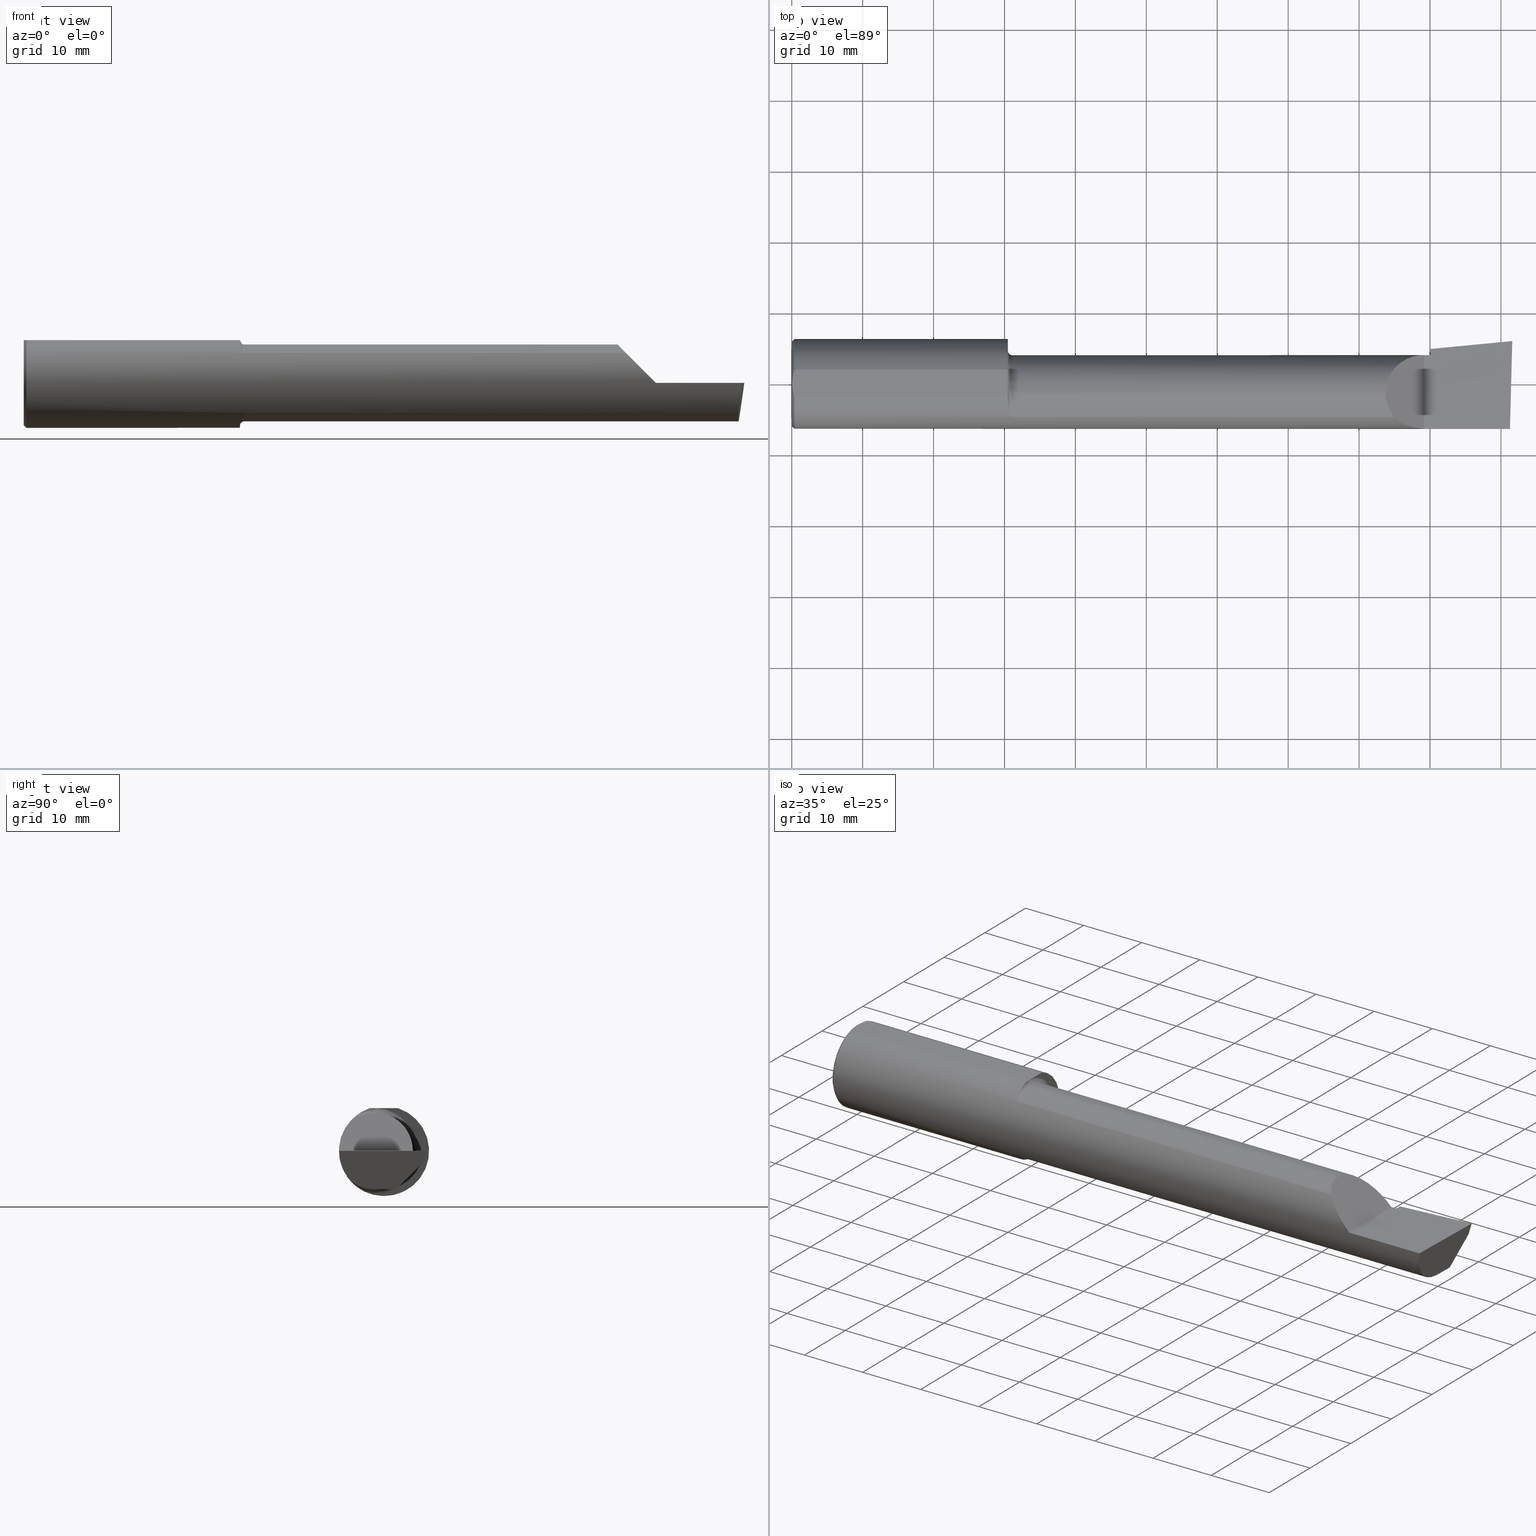
[diagram: canonical four-view strip — front | top / right | iso, engineering-drawing reading convention]
A machine part, canonical four-view strip (front | top / right | iso — engineering-drawing reading convention). The complete STEP part file that produces these views, byte-faithful:
ISO-10303-21;
HEADER;
FILE_DESCRIPTION (( 'STEP AP214' ),
    '1' );
FILE_NAME ('B4902750.STEP',
    '2020-05-06T20:05:03',
    ( '' ),
    ( '' ),
    'SwSTEP 2.0',
    'SolidWorks 2018',
    '' );
FILE_SCHEMA (( 'AUTOMOTIVE_DESIGN' ));
ENDSEC;

DATA;
#1 = ORIENTED_EDGE ( 'NONE', *, *, #139, .F. ) ;
#2 = VECTOR ( 'NONE', #736, 39.37007874015748143 ) ;
#3 = CARTESIAN_POINT ( 'NONE',  ( 1.200000000000000400, -0.04105010460297373043, 0.2378500000000000059 ) ) ;
#4 = ORIENTED_EDGE ( 'NONE', *, *, #674, .T. ) ;
#5 = ORIENTED_EDGE ( 'NONE', *, *, #404, .T. ) ;
#6 = DIRECTION ( 'NONE',  ( 0.06894566448119619773, -0.7160281025913034503, 0.6946583704589934793 ) ) ;
#7 = FACE_OUTER_BOUND ( 'NONE', #180, .T. ) ;
#8 = CARTESIAN_POINT ( 'NONE',  ( 1.200001800035618293, -0.04901601311796578014, 0.2378500024320483464 ) ) ;
#9 = VERTEX_POINT ( 'NONE', #194 ) ;
#10 = CARTESIAN_POINT ( 'NONE',  ( 3.344079160038590626, -0.1868028301886808795, 0.1659208399614073015 ) ) ;
#11 = EDGE_CURVE ( 'NONE', #76, #616, #684, .T. ) ;
#12 = LINE ( 'NONE', #202, #466 ) ;
#13 = DIRECTION ( 'NONE',  ( -1.000000000000000000, 0.0000000000000000000, 1.512967610748942321E-16 ) ) ;
#14 = EDGE_CURVE ( 'NONE', #761, #616, #144, .T. ) ;
#15 = DIRECTION ( 'NONE',  ( 0.0000000000000000000, 0.0000000000000000000, 1.000000000000000000 ) ) ;
#16 = CIRCLE ( 'NONE', #109, 0.2381499999999997230 ) ;
#17 = VERTEX_POINT ( 'NONE', #128 ) ;
#18 = CARTESIAN_POINT ( 'NONE',  ( 7.089685198749692867E-32, -0.2498499999999999610, 4.685946446163635703E-16 ) ) ;
#19 = ORIENTED_EDGE ( 'NONE', *, *, #476, .F. ) ;
#20 = CARTESIAN_POINT ( 'NONE',  ( 0.0000000000000000000, -0.05299999999999998462, 0.2131499999999999506 ) ) ;
#21 = ORIENTED_EDGE ( 'NONE', *, *, #640, .T. ) ;
#22 = PLANE ( 'NONE',  #676 ) ;
#23 =( BOUNDED_CURVE ( )  B_SPLINE_CURVE ( 3, ( #468, #407, #179, #125 ),
 .UNSPECIFIED., .F., .F. ) 
 B_SPLINE_CURVE_WITH_KNOTS ( ( 4, 4 ),
 ( 2.868174658477177008, 2.883234730632700415 ),
 .UNSPECIFIED. ) 
 CURVE ( )  GEOMETRIC_REPRESENTATION_ITEM ( )  RATIONAL_B_SPLINE_CURVE ( ( 1.000000000000000000, 0.9999810996081960335, 0.9999810996081960335, 1.000000000000000000 ) ) 
 REPRESENTATION_ITEM ( '' )  );
#24 = FACE_OUTER_BOUND ( 'NONE', #658, .T. ) ;
#25 = CARTESIAN_POINT ( 'NONE',  ( 1.200332084145229627, -0.1014027185340456438, 0.2286231260779308383 ) ) ;
#26 = ORIENTED_EDGE ( 'NONE', *, *, #267, .T. ) ;
#27 = ORIENTED_EDGE ( 'NONE', *, *, #61, .F. ) ;
#28 = EDGE_CURVE ( 'NONE', #99, #131, #478, .T. ) ;
#29 = CARTESIAN_POINT ( 'NONE',  ( 1.225000000000000311, -0.1868028301886803799, 0.1659208399614076346 ) ) ;
#30 = VECTOR ( 'NONE', #628, 39.37007874015748854 ) ;
#31 = DIRECTION ( 'NONE',  ( 0.0000000000000000000, 0.0000000000000000000, -1.000000000000000000 ) ) ;
#32 = ORIENTED_EDGE ( 'NONE', *, *, #735, .F. ) ;
#33 = ADVANCED_FACE ( 'NONE', ( #592 ), #52, .T. ) ;
#34 = CARTESIAN_POINT ( 'NONE',  ( 1.225000000000000311, -0.1868028301886803799, 0.1659208399614076346 ) ) ;
#35 = CARTESIAN_POINT ( 'NONE',  ( 3.527186805775590628, 0.1926232675529001570, -6.829619984160658046E-17 ) ) ;
#36 = ADVANCED_FACE ( 'NONE', ( #521 ), #353, .F. ) ;
#37 = SURFACE_SIDE_STYLE ('',( #697 ) ) ;
#38 = DIRECTION ( 'NONE',  ( 0.09165774897393338949, -0.9519021185660614393, 0.2923717047227301080 ) ) ;
#39 = VECTOR ( 'NONE', #379, 39.37007874015748143 ) ;
#40 = ORIENTED_EDGE ( 'NONE', *, *, #355, .T. ) ;
#41 = VERTEX_POINT ( 'NONE', #181 ) ;
#42 = DIRECTION ( 'NONE',  ( -1.000000000000000000, -0.0000000000000000000, -0.0000000000000000000 ) ) ;
#43 = DIRECTION ( 'NONE',  ( 0.0000000000000000000, -1.138839417068643993E-16, -1.000000000000000000 ) ) ;
#44 = CIRCLE ( 'NONE', #325, 0.2131499999999997563 ) ;
#45 = AXIS2_PLACEMENT_3D ( 'NONE', #170, #175, #117 ) ;
#46 = ORIENTED_EDGE ( 'NONE', *, *, #374, .F. ) ;
#47 = CARTESIAN_POINT ( 'NONE',  ( 3.390325100969866945, -0.2278791102234780930, 0.1196748990301311488 ) ) ;
#48 = ORIENTED_EDGE ( 'NONE', *, *, #640, .F. ) ;
#49 = CARTESIAN_POINT ( 'NONE',  ( 3.966195468375009359, -0.05299999999999998462, -0.2131499999999999229 ) ) ;
#50 = ORIENTED_EDGE ( 'NONE', *, *, #700, .F. ) ;
#51 = DIRECTION ( 'NONE',  ( -0.7071067811865511255, 0.0000000000000000000, 0.7071067811865439090 ) ) ;
#52 = CYLINDRICAL_SURFACE ( 'NONE', #45, 0.2498499999999999888 ) ;
#53 = VERTEX_POINT ( 'NONE', #524 ) ;
#54 = B_SPLINE_CURVE_WITH_KNOTS ( 'NONE', 3,
 ( #388, #334, #611, #668, #204, #89 ),
 .UNSPECIFIED., .F., .F.,
 ( 4, 2, 4 ),
 ( 0.002692677063605041030, 0.003672889278957893171, 0.004653101494310745746 ),
 .UNSPECIFIED. ) ;
#55 = DIRECTION ( 'NONE',  ( 0.06658005426110603919, -0.6914603011188221737, -0.7193398003386548556 ) ) ;
#56 = EDGE_CURVE ( 'NONE', #454, #534, #209, .T. ) ;
#57 = CARTESIAN_POINT ( 'NONE',  ( 1.200000900032402340, -0.05299999999999998462, 0.2378500000000221548 ) ) ;
#58 = ORIENTED_EDGE ( 'NONE', *, *, #311, .T. ) ;
#59 = VERTEX_POINT ( 'NONE', #574 ) ;
#60 = CARTESIAN_POINT ( 'NONE',  ( 3.448145753305724259, -0.2498500000000001275, 0.06185424669427388999 ) ) ;
#61 = EDGE_CURVE ( 'NONE', #63, #146, #366, .T. ) ;
#62 = ORIENTED_EDGE ( 'NONE', *, *, #743, .F. ) ;
#63 = VERTEX_POINT ( 'NONE', #519 ) ;
#64 = DIRECTION ( 'NONE',  ( 0.0000000000000000000, -1.000000000000000000, 1.138839417068643993E-16 ) ) ;
#65 = LINE ( 'NONE', #18, #654 ) ;
#66 = ORIENTED_EDGE ( 'NONE', *, *, #114, .T. ) ;
#67 = VECTOR ( 'NONE', #167, 39.37007874015748143 ) ;
#68 = CARTESIAN_POINT ( 'NONE',  ( 0.0000000000000000000, -0.05299999999999998462, 0.0000000000000000000 ) ) ;
#69 = CARTESIAN_POINT ( 'NONE',  ( 2.385000000000000231, -0.1868028301886794917, 0.1659208399614086338 ) ) ;
#70 = EDGE_CURVE ( 'NONE', #9, #239, #190, .T. ) ;
#71 =( GEOMETRIC_REPRESENTATION_CONTEXT ( 3 ) GLOBAL_UNCERTAINTY_ASSIGNED_CONTEXT ( ( #198 ) ) GLOBAL_UNIT_ASSIGNED_CONTEXT ( ( #565, #219, #627 ) ) REPRESENTATION_CONTEXT ( 'NONE', 'WORKASPACE' ) );
#72 = DIRECTION ( 'NONE',  ( -1.000000000000000000, 5.691349986800549142E-18, -0.0000000000000000000 ) ) ;
#73 = CARTESIAN_POINT ( 'NONE',  ( 3.544999999999999929, -0.05299999999999998462, 0.0000000000000000000 ) ) ;
#74 = CARTESIAN_POINT ( 'NONE',  ( 0.01499999999999999771, 0.0000000000000000000, 0.0000000000000000000 ) ) ;
#75 = AXIS2_PLACEMENT_3D ( 'NONE', #107, #515, #158 ) ;
#76 = VERTEX_POINT ( 'NONE', #395 ) ;
#77 = PRODUCT_DEFINITION_CONTEXT ( 'detailed design', #341, 'design' ) ;
#78 = CARTESIAN_POINT ( 'NONE',  ( 3.544999999999999929, 0.05698775240724700958, -0.1825804393148460492 ) ) ;
#79 = ORIENTED_EDGE ( 'NONE', *, *, #70, .T. ) ;
#80 = CARTESIAN_POINT ( 'NONE',  ( 3.544999999999999929, 0.02733053485622427906, -0.2131499999999999506 ) ) ;
#81 = CARTESIAN_POINT ( 'NONE',  ( 3.987221270274238005, -0.2498499999999999888, -1.346590301211607078E-16 ) ) ;
#82 = FACE_OUTER_BOUND ( 'NONE', #587, .T. ) ;
#83 = CARTESIAN_POINT ( 'NONE',  ( 1.200001800093990489, -0.05698398688203856061, 0.2378499975680403167 ) ) ;
#84 =( BOUNDED_CURVE ( )  B_SPLINE_CURVE ( 3, ( #140, #490, #200, #603 ),
 .UNSPECIFIED., .F., .F. ) 
 B_SPLINE_CURVE_WITH_KNOTS ( ( 4, 4 ),
 ( 0.0000000000000000000, 1.570796326794898112 ),
 .UNSPECIFIED. ) 
 CURVE ( )  GEOMETRIC_REPRESENTATION_ITEM ( )  RATIONAL_B_SPLINE_CURVE ( ( 1.000000000000000000, 0.8047378541243646044, 0.8047378541243646044, 1.000000000000000000 ) ) 
 REPRESENTATION_ITEM ( '' )  );
#85 = CARTESIAN_POINT ( 'NONE',  ( 3.537149611766882806, 0.08915557130098392125, -0.1634615431086029191 ) ) ;
#86 = AXIS2_PLACEMENT_3D ( 'NONE', #229, #113, #51 ) ;
#87 = DIRECTION ( 'NONE',  ( 0.0000000000000000000, 0.0000000000000000000, -1.000000000000000000 ) ) ;
#88 = AXIS2_PLACEMENT_3D ( 'NONE', #74, #485, #135 ) ;
#89 = CARTESIAN_POINT ( 'NONE',  ( 0.003000000000000035624, 4.000210840755228160E-17, 0.2378500000000000059 ) ) ;
#90 = CARTESIAN_POINT ( 'NONE',  ( 1.202700302592143222, -0.1312404656039936057, 0.2128935242986059462 ) ) ;
#91 = DIRECTION ( 'NONE',  ( -1.000000000000000000, -0.0000000000000000000, -0.0000000000000000000 ) ) ;
#92 = COLOUR_RGB ( '',0.7529411764705882248, 0.7529411764705882248, 0.7529411764705882248 ) ;
#93 = CARTESIAN_POINT ( 'NONE',  ( 1.200000000000000400, 0.0000000000000000000, 0.0000000000000000000 ) ) ;
#94 = ADVANCED_FACE ( 'NONE', ( #352 ), #220, .T. ) ;
#95 = EDGE_LOOP ( 'NONE', ( #718, #546, #406, #563, #249 ) ) ;
#96 = DIRECTION ( 'NONE',  ( 0.0000000000000000000, 0.6963153109074925462, 0.7177360153954948085 ) ) ;
#97 = PLANE ( 'NONE',  #121 ) ;
#98 = AXIS2_PLACEMENT_3D ( 'NONE', #678, #630, #283 ) ;
#99 = VERTEX_POINT ( 'NONE', #569 ) ;
#100 = ADVANCED_FACE ( 'NONE', ( #331 ), #619, .T. ) ;
#101 = CARTESIAN_POINT ( 'NONE',  ( 3.988156289907357266, 0.07000163221415005299, -0.2131499999999999506 ) ) ;
#102 = COLOUR_RGB ( '',0.7529411764705882248, 0.7529411764705882248, 0.7529411764705882248 ) ;
#103 = DIRECTION ( 'NONE',  ( -0.0000000000000000000, 0.0000000000000000000, 1.000000000000000000 ) ) ;
#104 = ORIENTED_EDGE ( 'NONE', *, *, #540, .T. ) ;
#105 = ORIENTED_EDGE ( 'NONE', *, *, #700, .T. ) ;
#106 =( LENGTH_UNIT ( ) NAMED_UNIT ( * ) SI_UNIT ( $, .METRE. ) );
#107 = CARTESIAN_POINT ( 'NONE',  ( 3.544999999999999929, -0.05299999999999998462, 0.0000000000000000000 ) ) ;
#108 = EDGE_CURVE ( 'NONE', #131, #665, #169, .T. ) ;
#109 = AXIS2_PLACEMENT_3D ( 'NONE', #240, #358, #646 ) ;
#110 = PLANE ( 'NONE',  #344 ) ;
#111 = DIRECTION ( 'NONE',  ( 1.000000000000000000, 0.0000000000000000000, 0.0000000000000000000 ) ) ;
#112 = SURFACE_STYLE_USAGE ( .BOTH. , #163 ) ;
#113 = DIRECTION ( 'NONE',  ( -0.7071067811865439090, 0.0000000000000000000, -0.7071067811865511255 ) ) ;
#114 = EDGE_CURVE ( 'NONE', #644, #649, #482, .T. ) ;
#115 = AXIS2_PLACEMENT_3D ( 'NONE', #504, #560, #214 ) ;
#116 = VERTEX_POINT ( 'NONE', #562 ) ;
#117 = DIRECTION ( 'NONE',  ( 0.0000000000000000000, 0.0000000000000000000, 1.000000000000000000 ) ) ;
#118 = CARTESIAN_POINT ( 'NONE',  ( 0.003000000000000035624, 4.000210840755228160E-17, 0.2378500000000000059 ) ) ;
#119 = CARTESIAN_POINT ( 'NONE',  ( 3.544999999999999929, -0.05299999999999998462, -0.2131499999999999229 ) ) ;
#120 = ORIENTED_EDGE ( 'NONE', *, *, #527, .T. ) ;
#121 = AXIS2_PLACEMENT_3D ( 'NONE', #502, #382, #728 ) ;
#122 = CONICAL_SURFACE ( 'NONE', #195, 0.2498499999999999888, 0.7853981633974601584 ) ;
#123 = ORIENTED_EDGE ( 'NONE', *, *, #735, .T. ) ;
#124 = CYLINDRICAL_SURFACE ( 'NONE', #691, 0.2131499999999999506 ) ;
#125 = CARTESIAN_POINT ( 'NONE',  ( 3.544999999999999929, 0.1328281892403430642, -0.1044069278527782890 ) ) ;
#126 = DIRECTION ( 'NONE',  ( -1.000000000000000000, -0.0000000000000000000, -0.0000000000000000000 ) ) ;
#127 = ORIENTED_EDGE ( 'NONE', *, *, #503, .T. ) ;
#128 = CARTESIAN_POINT ( 'NONE',  ( 1.200000000000000400, -0.04105010460297373043, 0.2378500000000000059 ) ) ;
#129 = ORIENTED_EDGE ( 'NONE', *, *, #148, .T. ) ;
#130 = CARTESIAN_POINT ( 'NONE',  ( 3.544999999999999929, 0.1328281892403430642, -0.1044069278527782890 ) ) ;
#131 = VERTEX_POINT ( 'NONE', #217 ) ;
#132 = VECTOR ( 'NONE', #55, 39.37007874015748854 ) ;
#133 = PRODUCT_DEFINITION ( 'UNKNOWN', '', #174, #77 ) ;
#134 = ORIENTED_EDGE ( 'NONE', *, *, #404, .F. ) ;
#135 = DIRECTION ( 'NONE',  ( 0.0000000000000000000, 0.0000000000000000000, 1.000000000000000000 ) ) ;
#136 = CARTESIAN_POINT ( 'NONE',  ( 7.089685198749692867E-32, 0.1601499999999999313, 4.685946446163635703E-16 ) ) ;
#137 = DIRECTION ( 'NONE',  ( -1.000000000000000000, -0.0000000000000000000, -0.0000000000000000000 ) ) ;
#138 = VECTOR ( 'NONE', #558, 39.37007874015748854 ) ;
#139 = EDGE_CURVE ( 'NONE', #304, #228, #673, .T. ) ;
#140 = CARTESIAN_POINT ( 'NONE',  ( 3.296849999999997394, -0.05299999999999998462, 0.2131499999999999506 ) ) ;
#141 = AXIS2_PLACEMENT_3D ( 'NONE', #456, #762, #690 ) ;
#142 = FACE_OUTER_BOUND ( 'NONE', #268, .T. ) ;
#143 = EDGE_LOOP ( 'NONE', ( #257, #105, #255, #199, #296 ) ) ;
#144 = LINE ( 'NONE', #69, #433 ) ;
#145 = PLANE ( 'NONE',  #115 ) ;
#146 = VERTEX_POINT ( 'NONE', #442 ) ;
#147 = CARTESIAN_POINT ( 'NONE',  ( 1.207343635746627619, -0.1582230848692706693, 0.1936715022401941932 ) ) ;
#148 = EDGE_CURVE ( 'NONE', #228, #541, #312, .T. ) ;
#149 = VECTOR ( 'NONE', #731, 39.37007874015748143 ) ;
#150 = DIRECTION ( 'NONE',  ( 1.000000000000000000, 0.0000000000000000000, 0.0000000000000000000 ) ) ;
#151 = ORIENTED_EDGE ( 'NONE', *, *, #61, .T. ) ;
#152 = DIRECTION ( 'NONE',  ( 0.0000000000000000000, 0.6963153109074925462, 0.7177360153954948085 ) ) ;
#153 = ADVANCED_FACE ( 'NONE', ( #7 ), #97, .T. ) ;
#154 =( LENGTH_UNIT ( ) NAMED_UNIT ( * ) SI_UNIT ( $, .METRE. ) );
#155 = LINE ( 'NONE', #20, #601 ) ;
#156 =( NAMED_UNIT ( * ) PLANE_ANGLE_UNIT ( ) SI_UNIT ( $, .RADIAN. ) );
#157 = DIRECTION ( 'NONE',  ( 0.0000000000000000000, -0.2936076258024057917, -0.9559260233253795702 ) ) ;
#158 = DIRECTION ( 'NONE',  ( 0.0000000000000000000, 0.0000000000000000000, 1.000000000000000000 ) ) ;
#159 = ORIENTED_EDGE ( 'NONE', *, *, #11, .F. ) ;
#160 = DIRECTION ( 'NONE',  ( 0.9953961983671800740, 0.09584575252021046432, -3.362767318382027372E-14 ) ) ;
#161 = ORIENTED_EDGE ( 'NONE', *, *, #445, .F. ) ;
#162 = ORIENTED_EDGE ( 'NONE', *, *, #414, .T. ) ;
#163 = SURFACE_SIDE_STYLE ('',( #714 ) ) ;
#164 = AXIS2_PLACEMENT_3D ( 'NONE', #446, #738, #281 ) ;
#165 = AXIS2_PLACEMENT_3D ( 'NONE', #68, #189, #594 ) ;
#166 = CARTESIAN_POINT ( 'NONE',  ( 3.983714411583733295, 0.1632262006094473417, -0.1166167083458063969 ) ) ;
#167 = DIRECTION ( 'NONE',  ( 1.000000000000000000, 0.0000000000000000000, 0.0000000000000000000 ) ) ;
#168 =( NAMED_UNIT ( * ) PLANE_ANGLE_UNIT ( ) SI_UNIT ( $, .RADIAN. ) );
#169 = LINE ( 'NONE', #276, #657 ) ;
#170 = CARTESIAN_POINT ( 'NONE',  ( 0.0000000000000000000, 0.0000000000000000000, 0.0000000000000000000 ) ) ;
#171 = ORIENTED_EDGE ( 'NONE', *, *, #540, .F. ) ;
#172 = CARTESIAN_POINT ( 'NONE',  ( 4.000000000000000000, 0.2998500000000000609, 0.2378499999999999504 ) ) ;
#173 = CARTESIAN_POINT ( 'NONE',  ( 3.987221270274238005, -0.2498499999999999888, -1.346590301211607078E-16 ) ) ;
#174 = PRODUCT_DEFINITION_FORMATION_WITH_SPECIFIED_SOURCE ( 'ANY', '', #291, .NOT_KNOWN. ) ;
#175 = DIRECTION ( 'NONE',  ( -1.000000000000000000, -0.0000000000000000000, -0.0000000000000000000 ) ) ;
#176 = DIRECTION ( 'NONE',  ( 1.000000000000000000, 0.0000000000000000000, 0.0000000000000000000 ) ) ;
#177 = CIRCLE ( 'NONE', #376, 0.2381499999999997230 ) ;
#178 = DIMENSIONAL_EXPONENTS ( 1.000000000000000000, 0.0000000000000000000, 0.0000000000000000000, 0.0000000000000000000, 0.0000000000000000000, 0.0000000000000000000, 0.0000000000000000000 ) ;
#179 = CARTESIAN_POINT ( 'NONE',  ( 3.541044210672213310, 0.1333523194825136371, -0.1034740570574033680 ) ) ;
#180 = EDGE_LOOP ( 'NONE', ( #373, #567, #656 ) ) ;
#181 = CARTESIAN_POINT ( 'NONE',  ( 3.968492717492762889, -0.1868028301886794917, -0.1659208399614086338 ) ) ;
#182 = EDGE_CURVE ( 'NONE', #76, #99, #462, .T. ) ;
#183 = ORIENTED_EDGE ( 'NONE', *, *, #674, .F. ) ;
#184 = DIRECTION ( 'NONE',  ( -1.000000000000000000, -0.0000000000000000000, -0.0000000000000000000 ) ) ;
#185 = ORIENTED_EDGE ( 'NONE', *, *, #520, .T. ) ;
#186 = VECTOR ( 'NONE', #722, 39.37007874015748854 ) ;
#187 = EDGE_LOOP ( 'NONE', ( #568, #104, #451, #687, #457, #543, #27, #472, #759, #539, #225, #298, #46 ) ) ;
#188 = CARTESIAN_POINT ( 'NONE',  ( 3.344079160038590626, -0.1868028301886808795, 0.1659208399614073015 ) ) ;
#189 = DIRECTION ( 'NONE',  ( -1.000000000000000000, -0.0000000000000000000, -0.0000000000000000000 ) ) ;
#190 = LINE ( 'NONE', #166, #30 ) ;
#191 = EDGE_CURVE ( 'NONE', #131, #571, #596, .T. ) ;
#192 = STYLED_ITEM ( 'NONE', ( #537 ), #305 ) ;
#193 = ORIENTED_EDGE ( 'NONE', *, *, #259, .F. ) ;
#194 = CARTESIAN_POINT ( 'NONE',  ( 3.992127980275560262, 0.2189633278254523030, -0.06000000000000001166 ) ) ;
#195 = AXIS2_PLACEMENT_3D ( 'NONE', #526, #176, #580 ) ;
#196 = CARTESIAN_POINT ( 'NONE',  ( 3.541916792879878706, 0.05627666367902784544, -0.1830073912696823790 ) ) ;
#197 = CIRCLE ( 'NONE', #629, 0.2131499999999997563 ) ;
#198 = UNCERTAINTY_MEASURE_WITH_UNIT (LENGTH_MEASURE( 1.000000000000000082E-05 ), #565, 'distance_accuracy_value', 'NONE');
#199 = ORIENTED_EDGE ( 'NONE', *, *, #706, .T. ) ;
#200 = CARTESIAN_POINT ( 'NONE',  ( 3.385139620819825446, 0.1601500000000001811, 0.1248603791801746327 ) ) ;
#201 = VERTEX_POINT ( 'NONE', #556 ) ;
#202 = CARTESIAN_POINT ( 'NONE',  ( 0.01499999999999999771, 3.059780027669661931E-17, 0.2498499999999999888 ) ) ;
#203 = VECTOR ( 'NONE', #500, 39.37007874015748143 ) ;
#204 = CARTESIAN_POINT ( 'NONE',  ( 0.003000000000000061645, -0.01298133447204029636, 0.2378500000000000059 ) ) ;
#205 = ORIENTED_EDGE ( 'NONE', *, *, #487, .T. ) ;
#206 = AXIS2_PLACEMENT_3D ( 'NONE', #390, #507, #103 ) ;
#207 = AXIS2_PLACEMENT_3D ( 'NONE', #250, #6, #423 ) ;
#208 = CARTESIAN_POINT ( 'NONE',  ( 1.212758562425230391, -0.1743135686468876011, 0.1790760091940032661 ) ) ;
#209 = LINE ( 'NONE', #292, #499 ) ;
#210 = ORIENTED_EDGE ( 'NONE', *, *, #108, .F. ) ;
#211 = DIRECTION ( 'NONE',  ( 0.0000000000000000000, 0.0000000000000000000, 1.000000000000000000 ) ) ;
#212 = CARTESIAN_POINT ( 'NONE',  ( 1.205537042546467541, -0.1495003888704997952, -0.2004994225712666833 ) ) ;
#213 = DIRECTION ( 'NONE',  ( 0.0000000000000000000, 0.0000000000000000000, 1.000000000000000000 ) ) ;
#214 = DIRECTION ( 'NONE',  ( 0.1219104985252742052, 0.0000000000000000000, 0.9925410975618687015 ) ) ;
#215 = ADVANCED_FACE ( 'NONE', ( #297 ), #572, .T. ) ;
#216 = CARTESIAN_POINT ( 'NONE',  ( 3.544999999999999929, -0.05299999999999998462, -0.2131499999999999229 ) ) ;
#217 = CARTESIAN_POINT ( 'NONE',  ( 3.544999999999999929, 0.1601500000000001256, 4.685946446163640633E-16 ) ) ;
#218 = PRODUCT_RELATED_PRODUCT_CATEGORY ( 'part', '', ( #291 ) ) ;
#219 =( NAMED_UNIT ( * ) PLANE_ANGLE_UNIT ( ) SI_UNIT ( $, .RADIAN. ) );
#220 = PLANE ( 'NONE',  #206 ) ;
#221 = ORIENTED_EDGE ( 'NONE', *, *, #452, .F. ) ;
#222 = ADVANCED_FACE ( 'NONE', ( #758 ), #122, .T. ) ;
#223 = EDGE_LOOP ( 'NONE', ( #129, #58, #752, #610 ) ) ;
#224 = CARTESIAN_POINT ( 'NONE',  ( 1.200000000000000400, -0.08036415094339748044, -0.2365726648265746579 ) ) ;
#225 = ORIENTED_EDGE ( 'NONE', *, *, #754, .T. ) ;
#226 = EDGE_CURVE ( 'NONE', #304, #516, #275, .T. ) ;
#227 =( CONVERSION_BASED_UNIT ( 'INCH', #389 ) LENGTH_UNIT ( ) NAMED_UNIT ( #178 ) );
#228 = VERTEX_POINT ( 'NONE', #465 ) ;
#229 = CARTESIAN_POINT ( 'NONE',  ( 3.509999999999999787, -0.2500000000000000555, -6.245698675651499853E-17 ) ) ;
#230 = CARTESIAN_POINT ( 'NONE',  ( 3.979623920331825104, -0.2498500000000000443, -0.06185424669427502103 ) ) ;
#231 = EDGE_CURVE ( 'NONE', #633, #116, #441, .T. ) ;
#232 = PRESENTATION_LAYER_ASSIGNMENT (  '', '', ( #192 ) ) ;
#233 = B_SPLINE_CURVE_WITH_KNOTS ( 'NONE', 3,
 ( #118, #393, #327, #284, #434, #449 ),
 .UNSPECIFIED., .F., .F.,
 ( 4, 2, 4 ),
 ( 0.004653101494310745746, 0.005634627094920350784, 0.006616152695529954955 ),
 .UNSPECIFIED. ) ;
#234 = DIRECTION ( 'NONE',  ( 0.0000000000000000000, 0.0000000000000000000, 1.000000000000000000 ) ) ;
#235 = ORIENTED_EDGE ( 'NONE', *, *, #231, .F. ) ;
#236 = CARTESIAN_POINT ( 'NONE',  ( 3.509999999999999787, -0.2498499999999999610, -6.245698675651499853E-17 ) ) ;
#237 = CARTESIAN_POINT ( 'NONE',  ( 3.966195468375009359, -0.05299999999999998462, -0.2131499999999999229 ) ) ;
#238 = AXIS2_PLACEMENT_3D ( 'NONE', #750, #160, #579 ) ;
#239 = VERTEX_POINT ( 'NONE', #525 ) ;
#240 = CARTESIAN_POINT ( 'NONE',  ( 1.200000000000000400, -0.05299999999999998462, 0.0000000000000000000 ) ) ;
#241 = ORIENTED_EDGE ( 'NONE', *, *, #355, .F. ) ;
#242 = DIMENSIONAL_EXPONENTS ( 1.000000000000000000, 0.0000000000000000000, 0.0000000000000000000, 0.0000000000000000000, 0.0000000000000000000, 0.0000000000000000000, 0.0000000000000000000 ) ;
#243 = ORIENTED_EDGE ( 'NONE', *, *, #424, .F. ) ;
#244 = DIRECTION ( 'NONE',  ( -0.02617694830786740021, -0.9996573249755573709, 1.707029659308873255E-16 ) ) ;
#245 = CYLINDRICAL_SURFACE ( 'NONE', #165, 0.2131499999999999506 ) ;
#246 = CARTESIAN_POINT ( 'NONE',  ( 1.200000000000000400, -0.04503596074371477020, 0.2378500000000000059 ) ) ;
#247 = AXIS2_PLACEMENT_3D ( 'NONE', #270, #620, #213 ) ;
#248 = AXIS2_PLACEMENT_3D ( 'NONE', #253, #662, #314 ) ;
#249 = ORIENTED_EDGE ( 'NONE', *, *, #302, .F. ) ;
#250 = CARTESIAN_POINT ( 'NONE',  ( 3.528944985009565993, 0.1743638780700111635, -0.06000000000000001166 ) ) ;
#251 = ORIENTED_EDGE ( 'NONE', *, *, #520, .F. ) ;
#252 = ORIENTED_EDGE ( 'NONE', *, *, #231, .T. ) ;
#253 = CARTESIAN_POINT ( 'NONE',  ( 1.225000000000000311, -0.05299999999999998462, 0.2381499999999997230 ) ) ;
#254 = FACE_OUTER_BOUND ( 'NONE', #470, .T. ) ;
#255 = ORIENTED_EDGE ( 'NONE', *, *, #343, .F. ) ;
#256 = ORIENTED_EDGE ( 'NONE', *, *, #182, .F. ) ;
#257 = ORIENTED_EDGE ( 'NONE', *, *, #607, .F. ) ;
#258 = VECTOR ( 'NONE', #420, 39.37007874015748143 ) ;
#259 = EDGE_CURVE ( 'NONE', #605, #517, #584, .T. ) ;
#260 = CARTESIAN_POINT ( 'NONE',  ( 4.000000000000000000, -0.05299999999999998462, -0.2131499999999999229 ) ) ;
#261 = DIRECTION ( 'NONE',  ( -1.000000000000000000, -0.0000000000000000000, -0.0000000000000000000 ) ) ;
#262 = DIRECTION ( 'NONE',  ( 0.0000000000000000000, -1.000000000000000000, 1.707404996040164512E-16 ) ) ;
#263 = CARTESIAN_POINT ( 'NONE',  ( 1.200000000000000400, -0.06494989539702619719, 0.2378500000000000059 ) ) ;
#264 = CARTESIAN_POINT ( 'NONE',  ( 1.199999999999990408, -0.1016924291521898588, -0.2293274111511737212 ) ) ;
#265 = CARTESIAN_POINT ( 'NONE',  ( 1.217018584423772198, -0.1817363555988625867, 0.1714722504633794109 ) ) ;
#266 = CARTESIAN_POINT ( 'NONE',  ( 3.509999999999999787, -0.2500000000000000555, -6.245698675651499853E-17 ) ) ;
#267 = EDGE_CURVE ( 'NONE', #394, #644, #734, .T. ) ;
#268 = EDGE_LOOP ( 'NONE', ( #5, #120, #667, #26 ) ) ;
#269 = CARTESIAN_POINT ( 'NONE',  ( 1.201227564404961923, -0.1217005943024309367, -0.2193523119135129817 ) ) ;
#270 = CARTESIAN_POINT ( 'NONE',  ( 1.200000000000000400, -0.05299999999999998462, 0.0000000000000000000 ) ) ;
#271 = ADVANCED_FACE ( 'NONE', ( #716 ), #405, .F. ) ;
#272 = ORIENTED_EDGE ( 'NONE', *, *, #343, .T. ) ;
#273 = VERTEX_POINT ( 'NONE', #455 ) ;
#274 = FILL_AREA_STYLE_COLOUR ( '', #92 ) ;
#275 = CIRCLE ( 'NONE', #278, 0.02499999999999997363 ) ;
#276 = CARTESIAN_POINT ( 'NONE',  ( 3.544999999999999929, -0.2500000000000000555, -6.775237339413629936E-17 ) ) ;
#277 = ORIENTED_EDGE ( 'NONE', *, *, #553, .T. ) ;
#278 = AXIS2_PLACEMENT_3D ( 'NONE', #295, #699, #234 ) ;
#279 = ADVANCED_FACE ( 'NONE', ( #254 ), #642, .F. ) ;
#280 = CARTESIAN_POINT ( 'NONE',  ( 1.225000000000000311, -0.1868028301886804077, -0.1659208399614076346 ) ) ;
#281 = DIRECTION ( 'NONE',  ( 0.0000000000000000000, 0.0000000000000000000, -1.000000000000000000 ) ) ;
#282 = CIRCLE ( 'NONE', #609, 0.2498499999999999888 ) ;
#283 = DIRECTION ( 'NONE',  ( 1.000000000000000000, 0.0000000000000000000, 0.0000000000000000000 ) ) ;
#284 = CARTESIAN_POINT ( 'NONE',  ( 0.008199648822848975074, 0.05156445313451100965, 0.2378500000000000059 ) ) ;
#285 = MANIFOLD_SOLID_BREP ( '37C1400C-5212-4898-A77F-6CFBE0E7279B-GAAFaceID11', #328 ) ;
#286 = CARTESIAN_POINT ( 'NONE',  ( 1.215875558094660080, -0.1799506819598050422, -0.1733486322212168529 ) ) ;
#287 = DIRECTION ( 'NONE',  ( 0.0000000000000000000, 0.0000000000000000000, 1.000000000000000000 ) ) ;
#288 = CARTESIAN_POINT ( 'NONE',  ( 1.220138573936400350, -0.1849738682364339692, -0.1679602226613240989 ) ) ;
#289 = CARTESIAN_POINT ( 'NONE',  ( 3.991023571893940858, 0.2162715254282656929, -0.06841772571928599056 ) ) ;
#290 = AXIS2_PLACEMENT_3D ( 'NONE', #93, #439, #31 ) ;
#291 = PRODUCT ( 'B4902750', 'B4902750', '', ( #686 ) ) ;
#292 = CARTESIAN_POINT ( 'NONE',  ( 3.987226101480004559, -0.2496655036952227513, -1.346597502108384584E-16 ) ) ;
#293 = VERTEX_POINT ( 'NONE', #49 ) ;
#294 = CARTESIAN_POINT ( 'NONE',  ( 1.225000000000000311, -0.05299999999999998462, 0.0000000000000000000 ) ) ;
#295 = CARTESIAN_POINT ( 'NONE',  ( 1.225000000000000311, -0.05299999999999996381, -0.2381499999999997230 ) ) ;
#296 = ORIENTED_EDGE ( 'NONE', *, *, #664, .T. ) ;
#297 = FACE_OUTER_BOUND ( 'NONE', #582, .T. ) ;
#298 = ORIENTED_EDGE ( 'NONE', *, *, #148, .F. ) ;
#299 = EDGE_CURVE ( 'NONE', #394, #516, #702, .T. ) ;
#300 = CIRCLE ( 'NONE', #577, 0.2131500000000001172 ) ;
#301 = DIRECTION ( 'NONE',  ( 0.0000000000000000000, 0.0000000000000000000, 1.000000000000000000 ) ) ;
#302 = EDGE_CURVE ( 'NONE', #516, #422, #197, .T. ) ;
#303 = VECTOR ( 'NONE', #555, 39.37007874015748854 ) ;
#304 = VERTEX_POINT ( 'NONE', #458 ) ;
#305 = ADVANCED_BREP_SHAPE_REPRESENTATION ( 'B4902750', ( #285, #98 ), #71 ) ;
#306 = VECTOR ( 'NONE', #385, 39.37007874015748143 ) ;
#307 = LINE ( 'NONE', #335, #2 ) ;
#308 = ORIENTED_EDGE ( 'NONE', *, *, #226, .F. ) ;
#309 = CARTESIAN_POINT ( 'NONE',  ( 1.200000000000000400, 0.07650098038587482829, 0.2378500000000000059 ) ) ;
#310 = ORIENTED_EDGE ( 'NONE', *, *, #191, .T. ) ;
#311 = EDGE_CURVE ( 'NONE', #541, #17, #356, .T. ) ;
#312 = CIRCLE ( 'NONE', #290, 0.2498499999999999888 ) ;
#313 = EDGE_LOOP ( 'NONE', ( #161, #193, #425, #666, #717 ) ) ;
#314 = DIRECTION ( 'NONE',  ( 0.0000000000000000000, 0.0000000000000000000, -1.000000000000000000 ) ) ;
#315 = AXIS2_PLACEMENT_3D ( 'NONE', #757, #401, #696 ) ;
#316 = CARTESIAN_POINT ( 'NONE',  ( 1.225000000000000311, -0.05299999999999998462, 0.0000000000000000000 ) ) ;
#317 = CYLINDRICAL_SURFACE ( 'NONE', #141, 0.2131499999999999506 ) ;
#318 = ORIENTED_EDGE ( 'NONE', *, *, #259, .T. ) ;
#319 = DIRECTION ( 'NONE',  ( 0.7071067811865391350, 8.659560562355035164E-17, 0.7071067811865558994 ) ) ;
#320 = ORIENTED_EDGE ( 'NONE', *, *, #533, .F. ) ;
#321 = CARTESIAN_POINT ( 'NONE',  ( 3.528944985009565993, 0.1743638780700111635, -0.06000000000000001166 ) ) ;
#322 = ORIENTED_EDGE ( 'NONE', *, *, #622, .T. ) ;
#323 = FACE_OUTER_BOUND ( 'NONE', #143, .T. ) ;
#324 = CARTESIAN_POINT ( 'NONE',  ( 1.200000000000000400, -0.06494989539702619719, 0.2378500000000000059 ) ) ;
#325 = AXIS2_PLACEMENT_3D ( 'NONE', #608, #261, #670 ) ;
#326 = CARTESIAN_POINT ( 'NONE',  ( 3.544999999999999929, 0.1943384830701256338, -1.839460354692844041E-15 ) ) ;
#327 = CARTESIAN_POINT ( 'NONE',  ( 0.004092330037930639458, 0.02606142970188499164, 0.2378500000000000059 ) ) ;
#328 = CLOSED_SHELL ( 'NONE', ( #559, #337, #625, #271, #222, #153, #33, #279, #618, #36, #332, #100, #732, #508, #679, #94, #505, #443, #387, #566, #215, #740 ) ) ;
#329 = CARTESIAN_POINT ( 'NONE',  ( 1.220144309637441582, -0.1849788583324342151, 0.1679547276881058204 ) ) ;
#330 = CARTESIAN_POINT ( 'NONE',  ( 1.207341173198634765, -0.1582250006961569977, -0.1936724403215118184 ) ) ;
#331 = FACE_OUTER_BOUND ( 'NONE', #313, .T. ) ;
#332 = ADVANCED_FACE ( 'NONE', ( #488 ), #651, .F. ) ;
#333 = ORIENTED_EDGE ( 'NONE', *, *, #70, .F. ) ;
#334 = CARTESIAN_POINT ( 'NONE',  ( 0.01120982745448978989, -0.06412238594540857484, 0.2378500000000000336 ) ) ;
#335 = CARTESIAN_POINT ( 'NONE',  ( 0.9762916401177922365, -0.05299999999999998462, 3.208848816020454083E-16 ) ) ;
#336 = EDGE_CURVE ( 'NONE', #41, #293, #709, .T. ) ;
#337 = ADVANCED_FACE ( 'NONE', ( #339 ), #317, .T. ) ;
#338 = DIRECTION ( 'NONE',  ( 1.000000000000000000, 0.0000000000000000000, 0.0000000000000000000 ) ) ;
#339 = FACE_OUTER_BOUND ( 'NONE', #737, .T. ) ;
#340 = VERTEX_POINT ( 'NONE', #57 ) ;
#341 = APPLICATION_CONTEXT ( 'automotive_design' ) ;
#342 = CARTESIAN_POINT ( 'NONE',  ( 1.217016733372314308, -0.1817333077058778390, -0.1714754572696053081 ) ) ;
#343 = EDGE_CURVE ( 'NONE', #146, #704, #16, .T. ) ;
#344 = AXIS2_PLACEMENT_3D ( 'NONE', #35, #38, #157 ) ;
#345 = ORIENTED_EDGE ( 'NONE', *, *, #463, .T. ) ;
#346 = FACE_OUTER_BOUND ( 'NONE', #730, .T. ) ;
#347 = CARTESIAN_POINT ( 'NONE',  ( 1.200000000000000400, 0.2998500000000000609, 0.2378499999999999504 ) ) ;
#348 = CARTESIAN_POINT ( 'NONE',  ( 3.968492717492762889, -0.1868028301886794917, -0.1659208399614086338 ) ) ;
#349 = ORIENTED_EDGE ( 'NONE', *, *, #369, .F. ) ;
#350 = DIRECTION ( 'NONE',  ( -1.000000000000000000, -0.0000000000000000000, -0.0000000000000000000 ) ) ;
#351 =( LENGTH_UNIT ( ) NAMED_UNIT ( * ) SI_UNIT ( $, .METRE. ) );
#352 = FACE_OUTER_BOUND ( 'NONE', #427, .T. ) ;
#353 = PLANE ( 'NONE',  #86 ) ;
#354 = EDGE_LOOP ( 'NONE', ( #318, #614 ) ) ;
#355 = EDGE_CURVE ( 'NONE', #633, #571, #23, .T. ) ;
#356 = LINE ( 'NONE', #347, #648 ) ;
#357 = ORIENTED_EDGE ( 'NONE', *, *, #664, .F. ) ;
#358 = DIRECTION ( 'NONE',  ( -1.000000000000000000, -0.0000000000000000000, -0.0000000000000000000 ) ) ;
#359 = ORIENTED_EDGE ( 'NONE', *, *, #374, .T. ) ;
#360 = ORIENTED_EDGE ( 'NONE', *, *, #583, .T. ) ;
#361 = CARTESIAN_POINT ( 'NONE',  ( 1.225000000000000311, -0.05299999999999998462, 0.0000000000000000000 ) ) ;
#362 = UNCERTAINTY_MEASURE_WITH_UNIT (LENGTH_MEASURE( 1.000000000000000082E-05 ), #513, 'distance_accuracy_value', 'NONE');
#363 = FACE_OUTER_BOUND ( 'NONE', #681, .T. ) ;
#364 = ORIENTED_EDGE ( 'NONE', *, *, #28, .F. ) ;
#365 = AXIS2_PLACEMENT_3D ( 'NONE', #713, #370, #13 ) ;
#366 = CIRCLE ( 'NONE', #653, 0.2498499999999999888 ) ;
#367 = ORIENTED_EDGE ( 'NONE', *, *, #487, .F. ) ;
#368 = CARTESIAN_POINT ( 'NONE',  ( 1.225000000000000311, -0.05299999999999998462, 0.2131499999999997563 ) ) ;
#369 = EDGE_CURVE ( 'NONE', #517, #605, #631, .T. ) ;
#370 = DIRECTION ( 'NONE',  ( -1.512967610748942321E-16, 0.0000000000000000000, -1.000000000000000000 ) ) ;
#371 = DIRECTION ( 'NONE',  ( 0.0000000000000000000, 0.0000000000000000000, -1.000000000000000000 ) ) ;
#372 = EDGE_LOOP ( 'NONE', ( #32, #159, #461, #48 ) ) ;
#373 = ORIENTED_EDGE ( 'NONE', *, *, #114, .F. ) ;
#374 = EDGE_CURVE ( 'NONE', #422, #228, #756, .T. ) ;
#375 = DIRECTION ( 'NONE',  ( -1.000000000000000000, -0.0000000000000000000, -0.0000000000000000000 ) ) ;
#376 = AXIS2_PLACEMENT_3D ( 'NONE', #435, #431, #606 ) ;
#377 = CIRCLE ( 'NONE', #248, 0.02499999999999997363 ) ;
#378 = CARTESIAN_POINT ( 'NONE',  ( 3.540349815208491790, 0.05592018782259815246, -0.1832193089843148770 ) ) ;
#379 = DIRECTION ( 'NONE',  ( -1.000000000000000000, -0.0000000000000000000, -0.0000000000000000000 ) ) ;
#380 = CARTESIAN_POINT ( 'NONE',  ( 0.01499999999999999771, 0.0000000000000000000, -0.2498499999999999888 ) ) ;
#381 = CARTESIAN_POINT ( 'NONE',  ( 1.223548866468136431, -0.1868028301907328215, 0.1659208399590971217 ) ) ;
#382 = DIRECTION ( 'NONE',  ( -1.000000000000000000, 0.0000000000000000000, -0.0000000000000000000 ) ) ;
#383 = EDGE_CURVE ( 'NONE', #41, #422, #765, .T. ) ;
#384 = CARTESIAN_POINT ( 'NONE',  ( 3.296849999999997394, -0.05299999999999998462, 0.2131499999999999506 ) ) ;
#385 = DIRECTION ( 'NONE',  ( -1.000000000000000000, -0.0000000000000000000, -0.0000000000000000000 ) ) ;
#386 = ORIENTED_EDGE ( 'NONE', *, *, #302, .T. ) ;
#387 = ADVANCED_FACE ( 'NONE', ( #469 ), #110, .F. ) ;
#388 = CARTESIAN_POINT ( 'NONE',  ( 0.01499999999998191669, -0.07650098038590480432, 0.2378500000000000059 ) ) ;
#389 = LENGTH_MEASURE_WITH_UNIT ( LENGTH_MEASURE( 0.02539999999999999897 ), #351 );
#390 = CARTESIAN_POINT ( 'NONE',  ( 3.544999999999999929, 0.1943384830701196664, 0.0000000000000000000 ) ) ;
#391 = AXIS2_PLACEMENT_3D ( 'NONE', #294, #460, #287 ) ;
#392 = FILL_AREA_STYLE ('',( #274 ) ) ;
#393 = CARTESIAN_POINT ( 'NONE',  ( 0.003000000000000062946, 0.01299872814765622858, 0.2378499999999999226 ) ) ;
#394 = VERTEX_POINT ( 'NONE', #216 ) ;
#395 = CARTESIAN_POINT ( 'NONE',  ( 3.509999999999999787, -0.2498499999999999610, -6.245698675651499853E-17 ) ) ;
#396 = CARTESIAN_POINT ( 'NONE',  ( 0.0000000000000000000, 0.0000000000000000000, 0.0000000000000000000 ) ) ;
#397 = LINE ( 'NONE', #483, #708 ) ;
#398 = DIRECTION ( 'NONE',  ( 0.0000000000000000000, 1.000000000000000000, -1.138839417068643993E-16 ) ) ;
#399 = EDGE_CURVE ( 'NONE', #201, #585, #233, .T. ) ;
#400 = FILL_AREA_STYLE ('',( #748 ) ) ;
#401 = DIRECTION ( 'NONE',  ( -1.000000000000000000, -0.0000000000000000000, -0.0000000000000000000 ) ) ;
#402 = B_SPLINE_CURVE_WITH_KNOTS ( 'NONE', 3,
 ( #552, #83, #612, #263 ),
 .UNSPECIFIED., .F., .F.,
 ( 4, 4 ),
 ( 0.4999999999997267186, 1.000000000000000000 ),
 .UNSPECIFIED. ) ;
#403 = ORIENTED_EDGE ( 'NONE', *, *, #533, .T. ) ;
#404 = EDGE_CURVE ( 'NONE', #644, #239, #450, .T. ) ;
#405 = TOROIDAL_SURFACE ( 'NONE', #391, 0.2381499999999997230, 0.02499999999999999098 ) ;
#406 = ORIENTED_EDGE ( 'NONE', *, *, #336, .F. ) ;
#407 = CARTESIAN_POINT ( 'NONE',  ( 3.536975816846328335, 0.1338694103809223712, -0.1025372660271279823 ) ) ;
#408 = ORIENTED_EDGE ( 'NONE', *, *, #311, .F. ) ;
#409 = EDGE_LOOP ( 'NONE', ( #349, #464, #635, #277, #421 ) ) ;
#410 = CARTESIAN_POINT ( 'NONE',  ( 3.968492717492762889, -0.1868028301886794917, -0.1659208399614086338 ) ) ;
#411 = UNCERTAINTY_MEASURE_WITH_UNIT (LENGTH_MEASURE( 1.000000000000000082E-05 ), #227, 'distance_accuracy_value', 'NONE');
#412 = LINE ( 'NONE', #289, #258 ) ;
#413 = DIMENSIONAL_EXPONENTS ( 1.000000000000000000, 0.0000000000000000000, 0.0000000000000000000, 0.0000000000000000000, 0.0000000000000000000, 0.0000000000000000000, 0.0000000000000000000 ) ;
#414 = EDGE_CURVE ( 'NONE', #571, #59, #604, .T. ) ;
#415 = AXIS2_PLACEMENT_3D ( 'NONE', #260, #551, #262 ) ;
#416 = CARTESIAN_POINT ( 'NONE',  ( 3.973097331270539989, -0.2278791102234774546, -0.1196748990301325921 ) ) ;
#417 = ORIENTED_EDGE ( 'NONE', *, *, #607, .T. ) ;
#418 = DIRECTION ( 'NONE',  ( -1.000000000000000000, -0.0000000000000000000, -0.0000000000000000000 ) ) ;
#419 = CARTESIAN_POINT ( 'NONE',  ( 3.966218632342874084, -0.05211540375603083280, -0.2131499999999999229 ) ) ;
#420 = DIRECTION ( 'NONE',  ( -0.1240019227989248018, -0.3022330132596638408, -0.9451342385281328307 ) ) ;
#421 = ORIENTED_EDGE ( 'NONE', *, *, #710, .F. ) ;
#422 = VERTEX_POINT ( 'NONE', #280 ) ;
#423 = DIRECTION ( 'NONE',  ( 0.0000000000000000000, -0.6963153109074925462, -0.7177360153954948085 ) ) ;
#424 = EDGE_CURVE ( 'NONE', #273, #201, #54, .T. ) ;
#425 = ORIENTED_EDGE ( 'NONE', *, *, #710, .T. ) ;
#426 = LINE ( 'NONE', #459, #306 ) ;
#427 = EDGE_LOOP ( 'NONE', ( #444, #650, #492, #501 ) ) ;
#428 = STYLED_ITEM ( 'NONE', ( #561 ), #285 ) ;
#429 = LINE ( 'NONE', #419, #573 ) ;
#430 = CARTESIAN_POINT ( 'NONE',  ( 3.544999999999999929, 0.05698775240724700958, -0.1825804393148460492 ) ) ;
#431 = DIRECTION ( 'NONE',  ( -1.000000000000000000, -0.0000000000000000000, -0.0000000000000000000 ) ) ;
#432 = DIRECTION ( 'NONE',  ( 1.000000000000000000, 0.0000000000000000000, 0.0000000000000000000 ) ) ;
#433 = VECTOR ( 'NONE', #111, 39.37007874015748143 ) ;
#434 = CARTESIAN_POINT ( 'NONE',  ( 0.01120763235350239959, 0.06411521680875344187, 0.2378500000000000336 ) ) ;
#435 = CARTESIAN_POINT ( 'NONE',  ( 1.200000000000000400, -0.05299999999999998462, 0.0000000000000000000 ) ) ;
#436 = EDGE_CURVE ( 'NONE', #63, #273, #426, .T. ) ;
#437 = CARTESIAN_POINT ( 'NONE',  ( 1.201680550596499586, -0.1214972057705739766, 0.2186080375779516638 ) ) ;
#438 = ORIENTED_EDGE ( 'NONE', *, *, #436, .F. ) ;
#439 = DIRECTION ( 'NONE',  ( 1.000000000000000000, 0.0000000000000000000, 0.0000000000000000000 ) ) ;
#440 = ORIENTED_EDGE ( 'NONE', *, *, #56, .T. ) ;
#441 = LINE ( 'NONE', #760, #132 ) ;
#442 = CARTESIAN_POINT ( 'NONE',  ( 1.200000000000000400, -0.08036415094339748044, 0.2365726648265746579 ) ) ;
#443 = ADVANCED_FACE ( 'NONE', ( #142 ), #671, .F. ) ;
#444 = ORIENTED_EDGE ( 'NONE', *, *, #414, .F. ) ;
#445 = EDGE_CURVE ( 'NONE', #517, #201, #12, .T. ) ;
#446 = CARTESIAN_POINT ( 'NONE',  ( 0.01499999999999999771, 0.0000000000000000000, 0.0000000000000000000 ) ) ;
#447 = FACE_OUTER_BOUND ( 'NONE', #223, .T. ) ;
#448 = SURFACE_STYLE_USAGE ( .BOTH. , #37 ) ;
#449 = CARTESIAN_POINT ( 'NONE',  ( 0.01499999999999999771, 0.07650098038587481442, 0.2378500000000000059 ) ) ;
#450 = LINE ( 'NONE', #101, #303 ) ;
#451 = ORIENTED_EDGE ( 'NONE', *, *, #661, .T. ) ;
#452 = EDGE_CURVE ( 'NONE', #17, #304, #177, .T. ) ;
#453 = AXIS2_PLACEMENT_3D ( 'NONE', #316, #350, #599 ) ;
#454 = VERTEX_POINT ( 'NONE', #81 ) ;
#455 = CARTESIAN_POINT ( 'NONE',  ( 0.01499999999998191669, -0.07650098038590480432, 0.2378500000000000059 ) ) ;
#456 = CARTESIAN_POINT ( 'NONE',  ( 0.0000000000000000000, -0.05299999999999998462, 0.0000000000000000000 ) ) ;
#457 = ORIENTED_EDGE ( 'NONE', *, *, #14, .F. ) ;
#458 = CARTESIAN_POINT ( 'NONE',  ( 1.200000000000000400, -0.05299999999999996381, -0.2381499999999997230 ) ) ;
#459 = CARTESIAN_POINT ( 'NONE',  ( 0.0000000000000000000, -0.07650098038587477278, 0.2378500000000000059 ) ) ;
#460 = DIRECTION ( 'NONE',  ( -1.000000000000000000, -0.0000000000000000000, -0.0000000000000000000 ) ) ;
#461 = ORIENTED_EDGE ( 'NONE', *, *, #182, .T. ) ;
#462 = LINE ( 'NONE', #266, #149 ) ;
#463 = EDGE_CURVE ( 'NONE', #633, #116, #548, .T. ) ;
#464 = ORIENTED_EDGE ( 'NONE', *, *, #445, .T. ) ;
#465 = CARTESIAN_POINT ( 'NONE',  ( 1.200000000000000400, -0.08036415094339748044, -0.2365726648265746579 ) ) ;
#466 = VECTOR ( 'NONE', #319, 39.37007874015748143 ) ;
#467 = AXIS2_PLACEMENT_3D ( 'NONE', #172, #43, #398 ) ;
#468 = CARTESIAN_POINT ( 'NONE',  ( 3.532795049205047722, 0.1343794326159070684, -0.1015966078791043781 ) ) ;
#469 = FACE_OUTER_BOUND ( 'NONE', #489, .T. ) ;
#470 = EDGE_LOOP ( 'NONE', ( #408, #703, #767, #243, #438, #528, #50, #320 ) ) ;
#471 = CARTESIAN_POINT ( 'NONE',  ( 1.225000000000000311, -0.1868028301886804077, -0.1659208399614076346 ) ) ;
#472 = ORIENTED_EDGE ( 'NONE', *, *, #436, .T. ) ;
#473 = ORIENTED_EDGE ( 'NONE', *, *, #336, .T. ) ;
#474 = TOROIDAL_SURFACE ( 'NONE', #711, 0.2381499999999997230, 0.02499999999999999098 ) ;
#475 = DIRECTION ( 'NONE',  ( 0.0000000000000000000, 0.0000000000000000000, 1.000000000000000000 ) ) ;
#476 = EDGE_CURVE ( 'NONE', #53, #621, #155, .T. ) ;
#477 = AXIS2_PLACEMENT_3D ( 'NONE', #719, #137, #15 ) ;
#478 = LINE ( 'NONE', #136, #67 ) ;
#479 = CARTESIAN_POINT ( 'NONE',  ( 0.01499999999999999771, 0.0000000000000000000, 0.0000000000000000000 ) ) ;
#480 = DIRECTION ( 'NONE',  ( 1.000000000000000000, 0.0000000000000000000, 0.0000000000000000000 ) ) ;
#481 = ORIENTED_EDGE ( 'NONE', *, *, #476, .T. ) ;
#482 = LINE ( 'NONE', #624, #643 ) ;
#483 = CARTESIAN_POINT ( 'NONE',  ( 4.000000000000000000, -0.05299999999999998462, -0.2131499999999999229 ) ) ;
#484 = SHAPE_DEFINITION_REPRESENTATION ( #509, #305 ) ;
#485 = DIRECTION ( 'NONE',  ( -1.000000000000000000, -0.0000000000000000000, -0.0000000000000000000 ) ) ;
#486 = CARTESIAN_POINT ( 'NONE',  ( 0.0000000000000000000, -0.05299999999999998462, 0.0000000000000000000 ) ) ;
#487 = EDGE_CURVE ( 'NONE', #621, #516, #763, .T. ) ;
#488 = FACE_OUTER_BOUND ( 'NONE', #354, .T. ) ;
#489 = EDGE_LOOP ( 'NONE', ( #701, #185, #183, #597 ) ) ;
#490 = CARTESIAN_POINT ( 'NONE',  ( 3.296849999999997394, 0.07186037918017494641, 0.2131499999999999229 ) ) ;
#491 = DIRECTION ( 'NONE',  ( -1.000000000000000000, -0.0000000000000000000, -0.0000000000000000000 ) ) ;
#492 = ORIENTED_EDGE ( 'NONE', *, *, #108, .T. ) ;
#493 = EDGE_CURVE ( 'NONE', #59, #665, #626, .T. ) ;
#494 = CARTESIAN_POINT ( 'NONE',  ( 3.544999999999999929, 0.1943384830701263555, 4.685944709609230764E-16 ) ) ;
#495 = LINE ( 'NONE', #321, #186 ) ;
#496 = CARTESIAN_POINT ( 'NONE',  ( 1.225000000000000311, -0.05299999999999998462, 0.0000000000000000000 ) ) ;
#497 = DIRECTION ( 'NONE',  ( -1.000000000000000000, -0.0000000000000000000, -0.0000000000000000000 ) ) ;
#498 = CARTESIAN_POINT ( 'NONE',  ( 1.205553274544309605, -0.1495649063853957961, 0.2004446339470376537 ) ) ;
#499 = VECTOR ( 'NONE', #639, 39.37007874015748143 ) ;
#500 = DIRECTION ( 'NONE',  ( 0.7071067811865391350, 0.0000000000000000000, -0.7071067811865558994 ) ) ;
#501 = ORIENTED_EDGE ( 'NONE', *, *, #493, .F. ) ;
#502 = CARTESIAN_POINT ( 'NONE',  ( 3.544999999999999929, 0.1943384830701196664, 0.0000000000000000000 ) ) ;
#503 = EDGE_CURVE ( 'NONE', #649, #394, #300, .T. ) ;
#504 = CARTESIAN_POINT ( 'NONE',  ( 3.963949576795525065, -0.1303119248116720585, -0.2149526021148594757 ) ) ;
#505 = ADVANCED_FACE ( 'NONE', ( #742 ), #124, .T. ) ;
#506 = CARTESIAN_POINT ( 'NONE',  ( 3.544999999999999929, 0.2148312740513258212, -0.01988118725737611503 ) ) ;
#507 = DIRECTION ( 'NONE',  ( -1.000000000000000000, 0.0000000000000000000, -0.0000000000000000000 ) ) ;
#508 = ADVANCED_FACE ( 'NONE', ( #447 ), #641, .T. ) ;
#509 = PRODUCT_DEFINITION_SHAPE ( 'NONE', 'NONE',  #133 ) ;
#510 = PRESENTATION_LAYER_ASSIGNMENT (  '', '', ( #428 ) ) ;
#511 = VECTOR ( 'NONE', #532, 39.37007874015748143 ) ;
#512 = ORIENTED_EDGE ( 'NONE', *, *, #226, .T. ) ;
#513 =( CONVERSION_BASED_UNIT ( 'INCH', #747 ) LENGTH_UNIT ( ) NAMED_UNIT ( #413 ) );
#514 = CARTESIAN_POINT ( 'NONE',  ( 1.211285743882608346, -0.1704402150608126942, -0.1827701868778686956 ) ) ;
#515 = DIRECTION ( 'NONE',  ( -1.000000000000000000, -0.0000000000000000000, -0.0000000000000000000 ) ) ;
#516 = VERTEX_POINT ( 'NONE', #536 ) ;
#517 = VERTEX_POINT ( 'NONE', #575 ) ;
#518 = VERTEX_POINT ( 'NONE', #647 ) ;
#519 = CARTESIAN_POINT ( 'NONE',  ( 1.200000000000000400, -0.07650098038590487370, 0.2378500000000000059 ) ) ;
#520 = EDGE_CURVE ( 'NONE', #534, #9, #412, .T. ) ;
#521 = FACE_OUTER_BOUND ( 'NONE', #372, .T. ) ;
#522 = CARTESIAN_POINT ( 'NONE',  ( 1.200000000000000400, 0.1851499999999997315, 0.0000000000000000000 ) ) ;
#523 = EDGE_LOOP ( 'NONE', ( #308, #221, #403, #417, #205 ) ) ;
#524 = CARTESIAN_POINT ( 'NONE',  ( 3.296849999999997394, -0.05299999999999998462, 0.2131499999999999506 ) ) ;
#525 = CARTESIAN_POINT ( 'NONE',  ( 3.969369008890592632, 0.06819262280682632238, -0.2131499999999999506 ) ) ;
#526 = CARTESIAN_POINT ( 'NONE',  ( 0.01499999999999999771, 0.0000000000000000000, 0.0000000000000000000 ) ) ;
#527 = EDGE_CURVE ( 'NONE', #239, #293, #429, .T. ) ;
#528 = ORIENTED_EDGE ( 'NONE', *, *, #583, .F. ) ;
#529 = ORIENTED_EDGE ( 'NONE', *, *, #56, .F. ) ;
#530 = DIRECTION ( 'NONE',  ( 1.000000000000000000, 0.0000000000000000000, 0.0000000000000000000 ) ) ;
#531 = VECTOR ( 'NONE', #660, 39.37007874015748143 ) ;
#532 = DIRECTION ( 'NONE',  ( -1.000000000000000000, -0.0000000000000000000, -0.0000000000000000000 ) ) ;
#533 = EDGE_CURVE ( 'NONE', #17, #340, #749, .T. ) ;
#534 = VERTEX_POINT ( 'NONE', #693 ) ;
#535 = DIRECTION ( 'NONE',  ( 0.0000000000000000000, 0.0000000000000000000, 1.000000000000000000 ) ) ;
#536 = CARTESIAN_POINT ( 'NONE',  ( 1.225000000000000311, -0.05299999999999996381, -0.2131499999999997563 ) ) ;
#537 = PRESENTATION_STYLE_ASSIGNMENT (( #448 ) ) ;
#538 = CARTESIAN_POINT ( 'NONE',  ( 0.01499999999999999771, 0.07650098038587481442, 0.2378500000000000059 ) ) ;
#539 = ORIENTED_EDGE ( 'NONE', *, *, #553, .F. ) ;
#540 = EDGE_CURVE ( 'NONE', #41, #454, #655, .T. ) ;
#541 = VERTEX_POINT ( 'NONE', #309 ) ;
#542 = PLANE ( 'NONE',  #365 ) ;
#543 = ORIENTED_EDGE ( 'NONE', *, *, #706, .F. ) ;
#544 = CARTESIAN_POINT ( 'NONE',  ( 3.532795049205047722, 0.1343794326159070684, -0.1015966078791043781 ) ) ;
#545 = MECHANICAL_DESIGN_GEOMETRIC_PRESENTATION_REPRESENTATION (  '', ( #428 ), #588 ) ;
#546 = ORIENTED_EDGE ( 'NONE', *, *, #576, .F. ) ;
#547 = DIRECTION ( 'NONE',  ( 0.0000000000000000000, 0.0000000000000000000, 1.000000000000000000 ) ) ;
#548 =( BOUNDED_CURVE ( )  B_SPLINE_CURVE ( 3, ( #724, #550, #85, #378 ),
 .UNSPECIFIED., .F., .T. ) 
 B_SPLINE_CURVE_WITH_KNOTS ( ( 4, 4 ),
 ( 0.4968328636548212107, 1.034445644973938316 ),
 .UNSPECIFIED. ) 
 CURVE ( )  GEOMETRIC_REPRESENTATION_ITEM ( )  RATIONAL_B_SPLINE_CURVE ( ( 1.000000000000000000, 0.9760590552538849218, 0.9760590552538849218, 1.000000000000000000 ) ) 
 REPRESENTATION_ITEM ( '' )  );
#549 = LINE ( 'NONE', #595, #531 ) ;
#550 = CARTESIAN_POINT ( 'NONE',  ( 3.534569588231498027, 0.1159501401920711577, -0.1355866241796522820 ) ) ;
#551 = DIRECTION ( 'NONE',  ( 9.717439401676380705E-34, 1.707404996040164512E-16, 1.000000000000000000 ) ) ;
#552 = CARTESIAN_POINT ( 'NONE',  ( 1.200000900032402340, -0.05299999999999998462, 0.2378500000000221548 ) ) ;
#553 = EDGE_CURVE ( 'NONE', #585, #518, #282, .T. ) ;
#554 = CARTESIAN_POINT ( 'NONE',  ( 1.211268146151109670, -0.1703904609315289032, 0.1828159088808235522 ) ) ;
#555 = DIRECTION ( 'NONE',  ( 0.9953961983671800740, 0.09584575252021027003, -1.516874858616837700E-17 ) ) ;
#556 = CARTESIAN_POINT ( 'NONE',  ( 0.003000000000000035624, 4.000210840755228160E-17, 0.2378500000000000059 ) ) ;
#557 = CARTESIAN_POINT ( 'NONE',  ( 3.344079160038590626, -0.1868028301886808795, 0.1659208399614073015 ) ) ;
#558 = DIRECTION ( 'NONE',  ( 0.0000000000000000000, 0.2936076258024057917, 0.9559260233253795702 ) ) ;
#559 = ADVANCED_FACE ( 'NONE', ( #589 ), #245, .T. ) ;
#560 = DIRECTION ( 'NONE',  ( -0.9922060308645490601, 0.02598182930468765500, 0.1218693434051388302 ) ) ;
#561 = PRESENTATION_STYLE_ASSIGNMENT (( #112 ) ) ;
#562 = CARTESIAN_POINT ( 'NONE',  ( 3.540349815208491790, 0.05592018782259815246, -0.1832193089843148770 ) ) ;
#563 = ORIENTED_EDGE ( 'NONE', *, *, #383, .T. ) ;
#564 = VECTOR ( 'NONE', #645, 39.37007874015748143 ) ;
#565 =( CONVERSION_BASED_UNIT ( 'INCH', #726 ) LENGTH_UNIT ( ) NAMED_UNIT ( #242 ) );
#566 = ADVANCED_FACE ( 'NONE', ( #720 ), #712, .F. ) ;
#567 = ORIENTED_EDGE ( 'NONE', *, *, #267, .F. ) ;
#568 = ORIENTED_EDGE ( 'NONE', *, *, #383, .F. ) ;
#569 = CARTESIAN_POINT ( 'NONE',  ( 3.509999999999999787, 0.1601499999999999035, -6.245698675651499853E-17 ) ) ;
#570 =( NAMED_UNIT ( * ) SI_UNIT ( $, .STERADIAN. ) SOLID_ANGLE_UNIT ( ) );
#571 = VERTEX_POINT ( 'NONE', #130 ) ;
#572 = PLANE ( 'NONE',  #238 ) ;
#573 = VECTOR ( 'NONE', #244, 39.37007874015748854 ) ;
#574 = CARTESIAN_POINT ( 'NONE',  ( 3.544999999999999929, 0.1759098001822370638, -0.06000000000000001166 ) ) ;
#575 = CARTESIAN_POINT ( 'NONE',  ( 0.0000000000000000000, 2.967931517733664878E-17, 0.2348499999999996424 ) ) ;
#576 = EDGE_CURVE ( 'NONE', #293, #394, #397, .T. ) ;
#577 = AXIS2_PLACEMENT_3D ( 'NONE', #73, #418, #475 ) ;
#578 =( BOUNDED_CURVE ( )  B_SPLINE_CURVE ( 3, ( #557, #617, #729, #384 ),
 .UNSPECIFIED., .F., .F. ) 
 B_SPLINE_CURVE_WITH_KNOTS ( ( 4, 4 ),
 ( 5.604538515477337945, 6.283185307179586232 ),
 .UNSPECIFIED. ) 
 CURVE ( )  GEOMETRIC_REPRESENTATION_ITEM ( )  RATIONAL_B_SPLINE_CURVE ( ( 1.000000000000000000, 0.9619867256453012994, 0.9619867256453012994, 1.000000000000000000 ) ) 
 REPRESENTATION_ITEM ( '' )  );
#579 = DIRECTION ( 'NONE',  ( -0.09584575252021046432, 0.9953961983671800740, 0.0000000000000000000 ) ) ;
#580 = DIRECTION ( 'NONE',  ( 0.0000000000000000000, 0.0000000000000000000, -1.000000000000000000 ) ) ;
#581 =( NAMED_UNIT ( * ) SI_UNIT ( $, .STERADIAN. ) SOLID_ANGLE_UNIT ( ) );
#582 = EDGE_LOOP ( 'NONE', ( #252, #715 ) ) ;
#583 = EDGE_CURVE ( 'NONE', #704, #63, #549, .T. ) ;
#584 = CIRCLE ( 'NONE', #315, 0.2348499999999996424 ) ;
#585 = VERTEX_POINT ( 'NONE', #538 ) ;
#586 = CARTESIAN_POINT ( 'NONE',  ( 3.964907988924523785, -0.1021668565906570375, -0.2131500000000000061 ) ) ;
#587 = EDGE_LOOP ( 'NONE', ( #677, #440, #62, #210, #364, #256 ) ) ;
#588 =( GEOMETRIC_REPRESENTATION_CONTEXT ( 3 ) GLOBAL_UNCERTAINTY_ASSIGNED_CONTEXT ( ( #411 ) ) GLOBAL_UNIT_ASSIGNED_CONTEXT ( ( #227, #168, #581 ) ) REPRESENTATION_CONTEXT ( 'NONE', 'WORKASPACE' ) );
#589 = FACE_OUTER_BOUND ( 'NONE', #768, .T. ) ;
#590 = VECTOR ( 'NONE', #96, 39.37007874015748143 ) ;
#591 = CARTESIAN_POINT ( 'NONE',  ( 1.223547768521294321, -0.1868028301886803799, -0.1659208399614076623 ) ) ;
#592 = FACE_OUTER_BOUND ( 'NONE', #187, .T. ) ;
#593 = EDGE_CURVE ( 'NONE', #518, #273, #689, .T. ) ;
#594 = DIRECTION ( 'NONE',  ( 0.0000000000000000000, 0.0000000000000000000, 1.000000000000000000 ) ) ;
#595 = CARTESIAN_POINT ( 'NONE',  ( 1.200000000000000400, 0.2998500000000000609, 0.2378499999999999504 ) ) ;
#596 = CIRCLE ( 'NONE', #75, 0.2131500000000001172 ) ;
#597 = ORIENTED_EDGE ( 'NONE', *, *, #493, .T. ) ;
#598 = CARTESIAN_POINT ( 'NONE',  ( 3.543466858877806658, 0.05663251955088035444, -0.1827944341085904478 ) ) ;
#599 = DIRECTION ( 'NONE',  ( 0.0000000000000000000, 0.0000000000000000000, 1.000000000000000000 ) ) ;
#600 = ORIENTED_EDGE ( 'NONE', *, *, #622, .F. ) ;
#601 = VECTOR ( 'NONE', #497, 39.37007874015748143 ) ;
#602 = CARTESIAN_POINT ( 'NONE',  ( 3.540349815208491790, 0.05592018782259815246, -0.1832193089843148770 ) ) ;
#603 = CARTESIAN_POINT ( 'NONE',  ( 3.509999999999999787, 0.1601499999999999035, -6.245698675651499853E-17 ) ) ;
#604 = LINE ( 'NONE', #506, #590 ) ;
#605 = VERTEX_POINT ( 'NONE', #659 ) ;
#606 = DIRECTION ( 'NONE',  ( 0.0000000000000000000, 0.0000000000000000000, 1.000000000000000000 ) ) ;
#607 = EDGE_CURVE ( 'NONE', #340, #621, #377, .T. ) ;
#608 = CARTESIAN_POINT ( 'NONE',  ( 1.225000000000000311, -0.05299999999999998462, 0.0000000000000000000 ) ) ;
#609 = AXIS2_PLACEMENT_3D ( 'NONE', #479, #126, #535 ) ;
#610 = ORIENTED_EDGE ( 'NONE', *, *, #139, .T. ) ;
#611 = CARTESIAN_POINT ( 'NONE',  ( 0.008160184410935175658, -0.05138200716576606791, 0.2378500000000000336 ) ) ;
#612 = CARTESIAN_POINT ( 'NONE',  ( 1.200000000000000400, -0.06096394231309024830, 0.2378500000000000059 ) ) ;
#613 = LINE ( 'NONE', #623, #751 ) ;
#614 = ORIENTED_EDGE ( 'NONE', *, *, #369, .T. ) ;
#615 = CARTESIAN_POINT ( 'NONE',  ( 1.215857071685141566, -0.1799228808997989093, 0.1733778622677440429 ) ) ;
#616 = VERTEX_POINT ( 'NONE', #10 ) ;
#617 = CARTESIAN_POINT ( 'NONE',  ( 3.313215146136122335, -0.1485302233682071760, 0.1967848538638751477 ) ) ;
#618 = ADVANCED_FACE ( 'NONE', ( #82 ), #542, .F. ) ;
#619 = CONICAL_SURFACE ( 'NONE', #164, 0.2498499999999999888, 0.7853981633974601584 ) ;
#620 = DIRECTION ( 'NONE',  ( -1.000000000000000000, -0.0000000000000000000, -0.0000000000000000000 ) ) ;
#621 = VERTEX_POINT ( 'NONE', #368 ) ;
#622 = EDGE_CURVE ( 'NONE', #649, #116, #766, .T. ) ;
#623 = CARTESIAN_POINT ( 'NONE',  ( 0.0000000000000000000, 0.07650098038587481442, 0.2378500000000000059 ) ) ;
#624 = CARTESIAN_POINT ( 'NONE',  ( 3.544999999999999929, 0.2148312740513258212, -0.01988118725737611503 ) ) ;
#625 = ADVANCED_FACE ( 'NONE', ( #363 ), #669, .F. ) ;
#626 = LINE ( 'NONE', #326, #138 ) ;
#627 =( NAMED_UNIT ( * ) SI_UNIT ( $, .STERADIAN. ) SOLID_ANGLE_UNIT ( ) );
#628 = DIRECTION ( 'NONE',  ( -0.1053106618241713005, -0.6976485211320173629, -0.7086580314005225256 ) ) ;
#629 = AXIS2_PLACEMENT_3D ( 'NONE', #361, #184, #301 ) ;
#630 = DIRECTION ( 'NONE',  ( 0.0000000000000000000, 0.0000000000000000000, 1.000000000000000000 ) ) ;
#631 = CIRCLE ( 'NONE', #707, 0.2348499999999996424 ) ;
#632 = CARTESIAN_POINT ( 'NONE',  ( 1.222232603162240805, -0.1862758070845885183, -0.1665151405181414246 ) ) ;
#633 = VERTEX_POINT ( 'NONE', #544 ) ;
#634 = ORIENTED_EDGE ( 'NONE', *, *, #527, .F. ) ;
#635 = ORIENTED_EDGE ( 'NONE', *, *, #399, .T. ) ;
#636 = CARTESIAN_POINT ( 'NONE',  ( 2.385000000000000231, -0.1868028301886794917, -0.1659208399614086338 ) ) ;
#637 = LINE ( 'NONE', #380, #203 ) ;
#638 = CARTESIAN_POINT ( 'NONE',  ( 1.200000900032402340, -0.05299999999999998462, 0.2378500000000221548 ) ) ;
#639 = DIRECTION ( 'NONE',  ( 0.02617694830786742102, 0.9996573249755573709, -3.901665791507040474E-18 ) ) ;
#640 = EDGE_CURVE ( 'NONE', #53, #99, #84, .T. ) ;
#641 = PLANE ( 'NONE',  #723 ) ;
#642 = PLANE ( 'NONE',  #467 ) ;
#643 = VECTOR ( 'NONE', #152, 39.37007874015748143 ) ;
#644 = VERTEX_POINT ( 'NONE', #80 ) ;
#645 = DIRECTION ( 'NONE',  ( 0.0000000000000000000, 1.000000000000000000, -1.707404996040164265E-16 ) ) ;
#646 = DIRECTION ( 'NONE',  ( 0.0000000000000000000, 0.0000000000000000000, 1.000000000000000000 ) ) ;
#647 = CARTESIAN_POINT ( 'NONE',  ( 0.01499999999999999771, 0.0000000000000000000, -0.2498499999999999888 ) ) ;
#648 = VECTOR ( 'NONE', #64, 39.37007874015748143 ) ;
#649 = VERTEX_POINT ( 'NONE', #430 ) ;
#650 = ORIENTED_EDGE ( 'NONE', *, *, #191, .F. ) ;
#651 = PLANE ( 'NONE',  #744 ) ;
#652 = ORIENTED_EDGE ( 'NONE', *, *, #14, .T. ) ;
#653 = AXIS2_PLACEMENT_3D ( 'NONE', #741, #338, #683 ) ;
#654 = VECTOR ( 'NONE', #375, 39.37007874015748143 ) ;
#655 =( BOUNDED_CURVE ( )  B_SPLINE_CURVE ( 3, ( #348, #416, #230, #173 ),
 .UNSPECIFIED., .F., .F. ) 
 B_SPLINE_CURVE_WITH_KNOTS ( ( 4, 4 ),
 ( 0.6344818218798794485, 1.360746882514760170 ),
 .UNSPECIFIED. ) 
 CURVE ( )  GEOMETRIC_REPRESENTATION_ITEM ( )  RATIONAL_B_SPLINE_CURVE ( ( 1.000000000000000000, 0.9565258159410998662, 0.9565258159410998662, 1.000000000000000000 ) ) 
 REPRESENTATION_ITEM ( '' )  );
#656 = ORIENTED_EDGE ( 'NONE', *, *, #503, .F. ) ;
#657 = VECTOR ( 'NONE', #680, 39.37007874015748143 ) ;
#658 = EDGE_LOOP ( 'NONE', ( #473, #634, #333, #251, #529, #171 ) ) ;
#659 = CARTESIAN_POINT ( 'NONE',  ( 0.0000000000000000000, 0.0000000000000000000, -0.2348499999999996424 ) ) ;
#660 = DIRECTION ( 'NONE',  ( 0.0000000000000000000, -1.000000000000000000, 1.138839417068643993E-16 ) ) ;
#661 = EDGE_CURVE ( 'NONE', #454, #76, #65, .T. ) ;
#662 = DIRECTION ( 'NONE',  ( 0.0000000000000000000, -1.000000000000000000, 0.0000000000000000000 ) ) ;
#663 = ORIENTED_EDGE ( 'NONE', *, *, #28, .T. ) ;
#664 = EDGE_CURVE ( 'NONE', #761, #621, #44, .T. ) ;
#665 = VERTEX_POINT ( 'NONE', #494 ) ;
#666 = ORIENTED_EDGE ( 'NONE', *, *, #593, .T. ) ;
#667 = ORIENTED_EDGE ( 'NONE', *, *, #576, .T. ) ;
#668 = CARTESIAN_POINT ( 'NONE',  ( 0.004068542164723859197, -0.02585015905295368760, 0.2378499999999999226 ) ) ;
#669 = TOROIDAL_SURFACE ( 'NONE', #477, 0.2381499999999997230, 0.02499999999999999098 ) ;
#670 = DIRECTION ( 'NONE',  ( 0.0000000000000000000, 0.0000000000000000000, 1.000000000000000000 ) ) ;
#671 = PLANE ( 'NONE',  #415 ) ;
#672 = CARTESIAN_POINT ( 'NONE',  ( 1.200000000000000400, -0.09104204635388273015, 0.2329453649474652333 ) ) ;
#673 = CIRCLE ( 'NONE', #247, 0.2381499999999997230 ) ;
#674 = EDGE_CURVE ( 'NONE', #59, #9, #495, .T. ) ;
#675 = CARTESIAN_POINT ( 'NONE',  ( 1.219290397284158889, -0.1841927918507060002, 0.1688179232533546237 ) ) ;
#676 = AXIS2_PLACEMENT_3D ( 'NONE', #721, #432, #87 ) ;
#677 = ORIENTED_EDGE ( 'NONE', *, *, #661, .F. ) ;
#678 = CARTESIAN_POINT ( 'NONE',  ( 0.0000000000000000000, 0.0000000000000000000, 0.0000000000000000000 ) ) ;
#679 = ADVANCED_FACE ( 'NONE', ( #346 ), #22, .T. ) ;
#680 = DIRECTION ( 'NONE',  ( 0.0000000000000000000, 1.000000000000000000, 0.0000000000000000000 ) ) ;
#681 = EDGE_LOOP ( 'NONE', ( #1, #512, #386, #359 ) ) ;
#682 = APPLICATION_PROTOCOL_DEFINITION ( 'draft international standard', 'automotive_design', 1998, #739 ) ;
#683 = DIRECTION ( 'NONE',  ( 0.0000000000000000000, 0.0000000000000000000, -1.000000000000000000 ) ) ;
#684 =( BOUNDED_CURVE ( )  B_SPLINE_CURVE ( 3, ( #236, #60, #47, #188 ),
 .UNSPECIFIED., .F., .T. ) 
 B_SPLINE_CURVE_WITH_KNOTS ( ( 4, 4 ),
 ( 4.712388980384687898, 5.438654041019563401 ),
 .UNSPECIFIED. ) 
 CURVE ( )  GEOMETRIC_REPRESENTATION_ITEM ( )  RATIONAL_B_SPLINE_CURVE ( ( 1.000000000000000000, 0.9565258159411005323, 0.9565258159411005323, 1.000000000000000000 ) ) 
 REPRESENTATION_ITEM ( '' )  );
#685 = ORIENTED_EDGE ( 'NONE', *, *, #299, .T. ) ;
#686 = PRODUCT_CONTEXT ( 'NONE', #739, 'mechanical' ) ;
#687 = ORIENTED_EDGE ( 'NONE', *, *, #11, .T. ) ;
#688 = CARTESIAN_POINT ( 'NONE',  ( 1.212797058507745440, -0.1743943839926598849, -0.1789958554125687107 ) ) ;
#689 = CIRCLE ( 'NONE', #88, 0.2498499999999999888 ) ;
#690 = DIRECTION ( 'NONE',  ( 0.0000000000000000000, 0.0000000000000000000, 1.000000000000000000 ) ) ;
#691 = AXIS2_PLACEMENT_3D ( 'NONE', #486, #491, #547 ) ;
#692 = CARTESIAN_POINT ( 'NONE',  ( 1.219285582744839669, -0.1841881072713818512, -0.1688230283719339697 ) ) ;
#693 = CARTESIAN_POINT ( 'NONE',  ( 4.000000000000015099, 0.2381500000000413564, 1.299249831736763071E-13 ) ) ;
#694 = CARTESIAN_POINT ( 'NONE',  ( 0.0000000000000000000, 0.0000000000000000000, 0.0000000000000000000 ) ) ;
#695 = B_SPLINE_CURVE_WITH_KNOTS ( 'NONE', 3,
 ( #725, #672, #25, #437, #90, #498, #147, #554, #208, #615, #265, #675, #329, #727, #381, #29 ),
 .UNSPECIFIED., .F., .F.,
 ( 4, 2, 2, 2, 2, 2, 2, 4 ),
 ( 0.0001034694911878371434, 0.0009591263138367673701, 0.001814783136485697461, 0.002670439959134626468, 0.003098268370459092164, 0.003312182576121323278, 0.003419139678952436666, 0.003526096781783550054 ),
 .UNSPECIFIED. ) ;
#696 = DIRECTION ( 'NONE',  ( 0.0000000000000000000, 0.0000000000000000000, 1.000000000000000000 ) ) ;
#697 = SURFACE_STYLE_FILL_AREA ( #392 ) ;
#698 = MECHANICAL_DESIGN_GEOMETRIC_PRESENTATION_REPRESENTATION (  '', ( #192 ), #733 ) ;
#699 = DIRECTION ( 'NONE',  ( -0.0000000000000000000, 1.000000000000000000, 1.224646799147353207E-16 ) ) ;
#700 = EDGE_CURVE ( 'NONE', #340, #704, #402, .T. ) ;
#701 = ORIENTED_EDGE ( 'NONE', *, *, #743, .T. ) ;
#702 = LINE ( 'NONE', #753, #511 ) ;
#703 = ORIENTED_EDGE ( 'NONE', *, *, #754, .F. ) ;
#704 = VERTEX_POINT ( 'NONE', #324 ) ;
#705 = DIRECTION ( 'NONE',  ( 0.0000000000000000000, 0.0000000000000000000, -1.000000000000000000 ) ) ;
#706 = EDGE_CURVE ( 'NONE', #146, #761, #695, .T. ) ;
#707 = AXIS2_PLACEMENT_3D ( 'NONE', #396, #42, #746 ) ;
#708 = VECTOR ( 'NONE', #72, 39.37007874015748143 ) ;
#709 =( BOUNDED_CURVE ( )  B_SPLINE_CURVE ( 3, ( #410, #764, #586, #237 ),
 .UNSPECIFIED., .F., .T. ) 
 B_SPLINE_CURVE_WITH_KNOTS ( ( 4, 4 ),
 ( 5.814587959757482771, 6.493234751459722176 ),
 .UNSPECIFIED. ) 
 CURVE ( )  GEOMETRIC_REPRESENTATION_ITEM ( )  RATIONAL_B_SPLINE_CURVE ( ( 1.000000000000000000, 0.9619867256453022986, 0.9619867256453022986, 1.000000000000000000 ) ) 
 REPRESENTATION_ITEM ( '' )  );
#710 = EDGE_CURVE ( 'NONE', #605, #518, #637, .T. ) ;
#711 = AXIS2_PLACEMENT_3D ( 'NONE', #496, #91, #211 ) ;
#712 = PLANE ( 'NONE',  #207 ) ;
#713 = CARTESIAN_POINT ( 'NONE',  ( 4.000000000000000000, -0.2500000000000000555, -1.365923996832131609E-16 ) ) ;
#714 = SURFACE_STYLE_FILL_AREA ( #400 ) ;
#715 = ORIENTED_EDGE ( 'NONE', *, *, #463, .F. ) ;
#716 = FACE_OUTER_BOUND ( 'NONE', #523, .T. ) ;
#717 = ORIENTED_EDGE ( 'NONE', *, *, #424, .T. ) ;
#718 = ORIENTED_EDGE ( 'NONE', *, *, #299, .F. ) ;
#719 = CARTESIAN_POINT ( 'NONE',  ( 1.225000000000000311, -0.05299999999999998462, 0.0000000000000000000 ) ) ;
#720 = FACE_OUTER_BOUND ( 'NONE', #755, .T. ) ;
#721 = CARTESIAN_POINT ( 'NONE',  ( 1.200000000000000400, 0.1851499999999997315, 0.0000000000000000000 ) ) ;
#722 = DIRECTION ( 'NONE',  ( 0.9953961983671800740, 0.09584575252021028391, -0.0000000000000000000 ) ) ;
#723 = AXIS2_PLACEMENT_3D ( 'NONE', #522, #480, #371 ) ;
#724 = CARTESIAN_POINT ( 'NONE',  ( 3.532795049205047722, 0.1343794326159070684, -0.1015966078791043781 ) ) ;
#725 = CARTESIAN_POINT ( 'NONE',  ( 1.200000000000000400, -0.08036415094339748044, 0.2365726648265746579 ) ) ;
#726 = LENGTH_MEASURE_WITH_UNIT ( LENGTH_MEASURE( 0.02539999999999999897 ), #154 );
#727 = CARTESIAN_POINT ( 'NONE',  ( 1.222243150415551760, -0.1862809296394756786, 0.1665094106511978145 ) ) ;
#728 = DIRECTION ( 'NONE',  ( -0.0000000000000000000, 0.0000000000000000000, 1.000000000000000000 ) ) ;
#729 = CARTESIAN_POINT ( 'NONE',  ( 3.296849999999996061, -0.1021668565906576620, 0.2131499999999999229 ) ) ;
#730 = EDGE_LOOP ( 'NONE', ( #151, #272, #360 ) ) ;
#731 = DIRECTION ( 'NONE',  ( -0.0000000000000000000, 1.000000000000000000, -0.0000000000000000000 ) ) ;
#732 = ADVANCED_FACE ( 'NONE', ( #323 ), #474, .F. ) ;
#733 =( GEOMETRIC_REPRESENTATION_CONTEXT ( 3 ) GLOBAL_UNCERTAINTY_ASSIGNED_CONTEXT ( ( #362 ) ) GLOBAL_UNIT_ASSIGNED_CONTEXT ( ( #513, #156, #570 ) ) REPRESENTATION_CONTEXT ( 'NONE', 'WORKASPACE' ) );
#734 = LINE ( 'NONE', #119, #564 ) ;
#735 = EDGE_CURVE ( 'NONE', #616, #53, #578, .T. ) ;
#736 = DIRECTION ( 'NONE',  ( 0.9953961983671787417, 0.09584575252022452252, -1.506002207992170530E-16 ) ) ;
#737 = EDGE_LOOP ( 'NONE', ( #123, #481, #357, #652 ) ) ;
#738 = DIRECTION ( 'NONE',  ( 1.000000000000000000, 0.0000000000000000000, 0.0000000000000000000 ) ) ;
#739 = APPLICATION_CONTEXT ( 'automotive_design' ) ;
#740 = ADVANCED_FACE ( 'NONE', ( #24 ), #145, .F. ) ;
#741 = CARTESIAN_POINT ( 'NONE',  ( 1.200000000000000400, 0.0000000000000000000, 0.0000000000000000000 ) ) ;
#742 = FACE_OUTER_BOUND ( 'NONE', #95, .T. ) ;
#743 = EDGE_CURVE ( 'NONE', #665, #534, #307, .T. ) ;
#744 = AXIS2_PLACEMENT_3D ( 'NONE', #694, #530, #705 ) ;
#745 = APPLICATION_PROTOCOL_DEFINITION ( 'draft international standard', 'automotive_design', 1998, #341 ) ;
#746 = DIRECTION ( 'NONE',  ( 0.0000000000000000000, 0.0000000000000000000, 1.000000000000000000 ) ) ;
#747 = LENGTH_MEASURE_WITH_UNIT ( LENGTH_MEASURE( 0.02539999999999999897 ), #106 );
#748 = FILL_AREA_STYLE_COLOUR ( '', #102 ) ;
#749 = B_SPLINE_CURVE_WITH_KNOTS ( 'NONE', 3,
 ( #3, #246, #8, #638 ),
 .UNSPECIFIED., .F., .F.,
 ( 4, 4 ),
 ( 0.0000000000000000000, 0.4999999999997267186 ),
 .UNSPECIFIED. ) ;
#750 = CARTESIAN_POINT ( 'NONE',  ( 3.535684672073138302, 0.1043695517189374422, -0.2900000000000000910 ) ) ;
#751 = VECTOR ( 'NONE', #150, 39.37007874015748143 ) ;
#752 = ORIENTED_EDGE ( 'NONE', *, *, #452, .T. ) ;
#753 = CARTESIAN_POINT ( 'NONE',  ( 0.0000000000000000000, -0.05299999999999996381, -0.2131499999999999506 ) ) ;
#754 = EDGE_CURVE ( 'NONE', #585, #541, #613, .T. ) ;
#755 = EDGE_LOOP ( 'NONE', ( #4, #79, #134, #66, #322, #235, #40, #162 ) ) ;
#756 = B_SPLINE_CURVE_WITH_KNOTS ( 'NONE', 3,
 ( #471, #591, #632, #288, #692, #342, #286, #688, #514, #330, #212, #269, #264, #224 ),
 .UNSPECIFIED., .F., .F.,
 ( 4, 2, 2, 2, 2, 2, 4 ),
 ( 1.967619685253095994E-07, 0.0001090840123077906792, 0.0002179712626470560314, 0.0004357457633255811522, 0.0008712947646826259187, 0.001742392767396717945, 0.003484588772824900697 ),
 .UNSPECIFIED. ) ;
#757 = CARTESIAN_POINT ( 'NONE',  ( 0.0000000000000000000, 0.0000000000000000000, 0.0000000000000000000 ) ) ;
#758 = FACE_OUTER_BOUND ( 'NONE', #409, .T. ) ;
#759 = ORIENTED_EDGE ( 'NONE', *, *, #593, .F. ) ;
#760 = CARTESIAN_POINT ( 'NONE',  ( 3.528944985009565993, 0.1743638780700111635, -0.06000000000000001166 ) ) ;
#761 = VERTEX_POINT ( 'NONE', #34 ) ;
#762 = DIRECTION ( 'NONE',  ( -1.000000000000000000, -0.0000000000000000000, -0.0000000000000000000 ) ) ;
#763 = CIRCLE ( 'NONE', #453, 0.2131499999999997563 ) ;
#764 = CARTESIAN_POINT ( 'NONE',  ( 3.965703997523711610, -0.1485302233682060380, -0.1967848538638757028 ) ) ;
#765 = LINE ( 'NONE', #636, #39 ) ;
#766 =( BOUNDED_CURVE ( )  B_SPLINE_CURVE ( 3, ( #78, #598, #196, #602 ),
 .UNSPECIFIED., .F., .F. ) 
 B_SPLINE_CURVE_WITH_KNOTS ( ( 4, 4 ),
 ( 3.399950576546886705, 3.405787439796292393 ),
 .UNSPECIFIED. ) 
 CURVE ( )  GEOMETRIC_REPRESENTATION_ITEM ( )  RATIONAL_B_SPLINE_CURVE ( ( 1.000000000000000000, 0.9999971609209656886, 0.9999971609209656886, 1.000000000000000000 ) ) 
 REPRESENTATION_ITEM ( '' )  );
#767 = ORIENTED_EDGE ( 'NONE', *, *, #399, .F. ) ;
#768 = EDGE_LOOP ( 'NONE', ( #127, #685, #367, #19, #21, #663, #310, #241, #345, #600 ) ) ;
ENDSEC;
END-ISO-10303-21;
